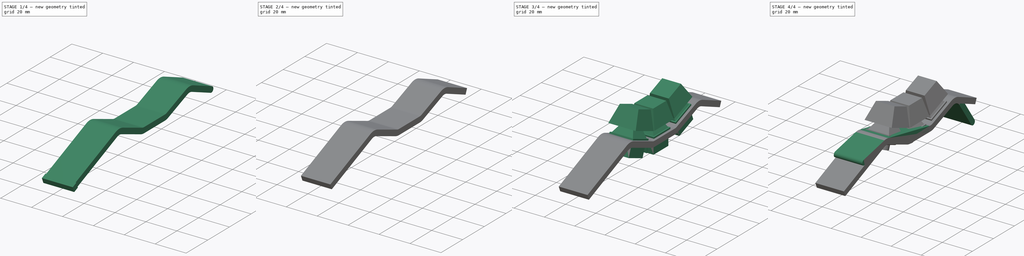
[diagram: build sequence overview — one tinted view per stage of 4, left to right]
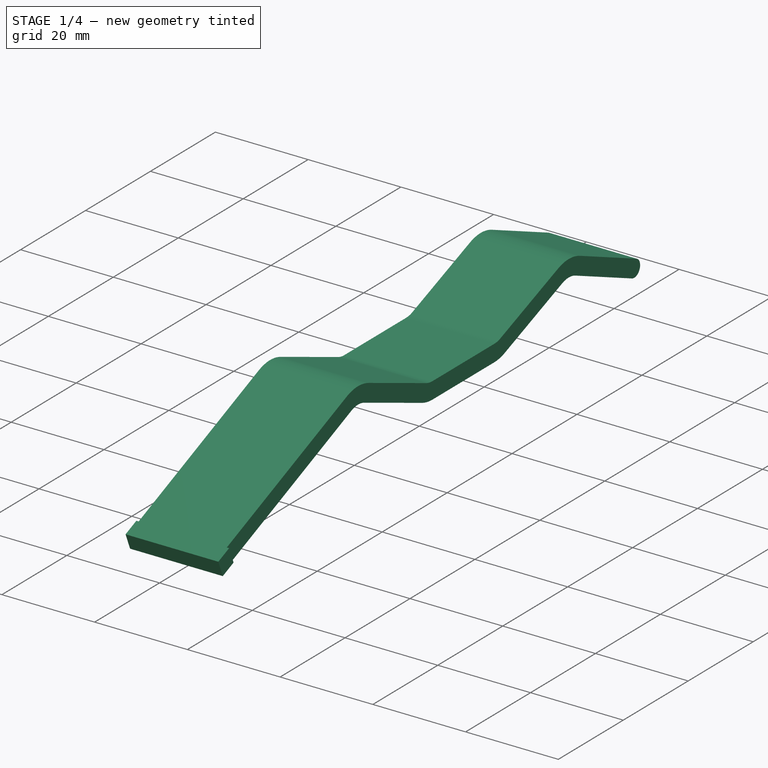
[diagram: stage 1 of 4 — iso view after this stage's code; geometry added in this stage tinted green]
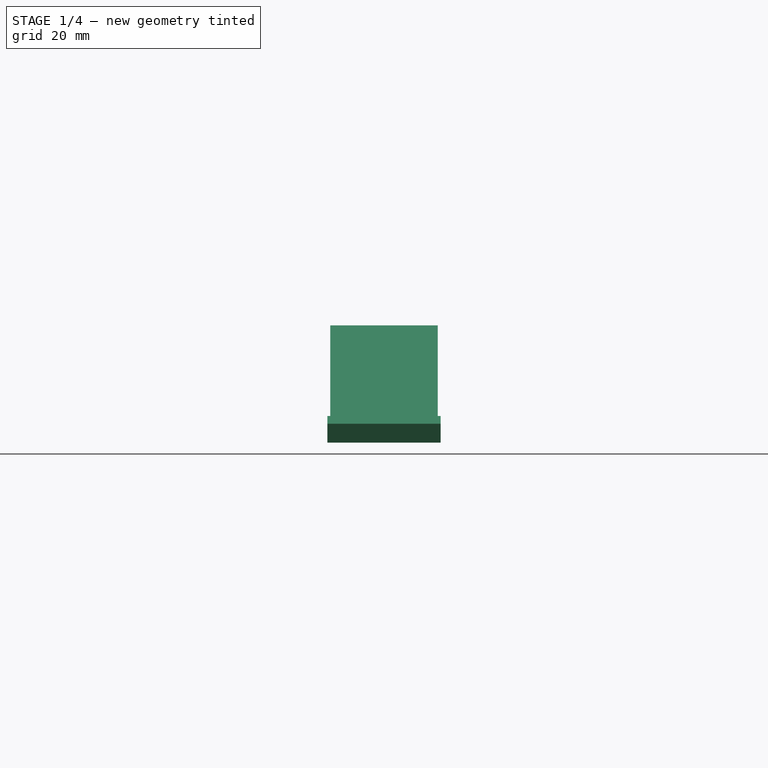
[diagram: stage 1 of 4 — front view after this stage's code; geometry added in this stage tinted green]
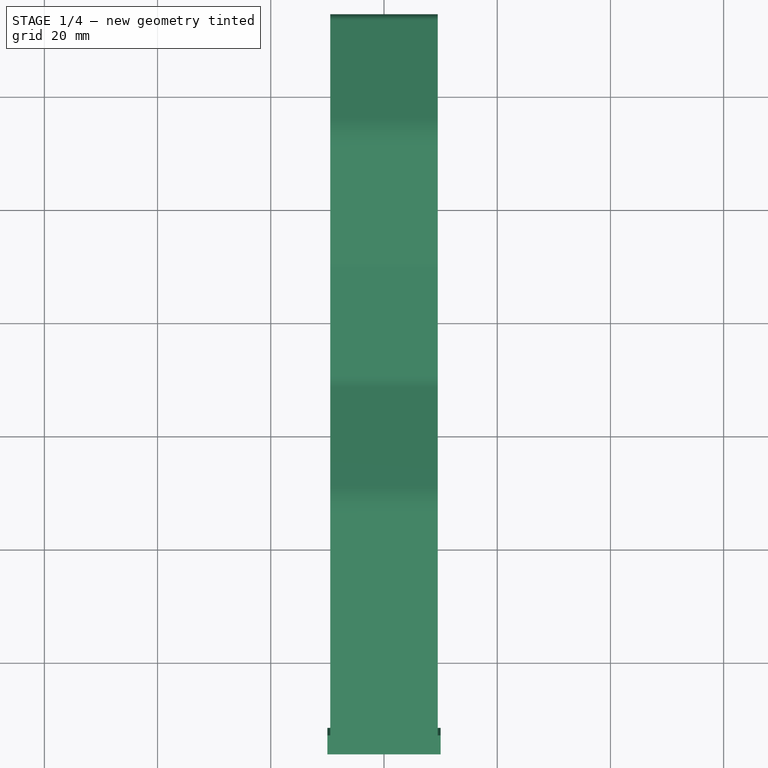
[diagram: stage 1 of 4 — top view after this stage's code; geometry added in this stage tinted green]
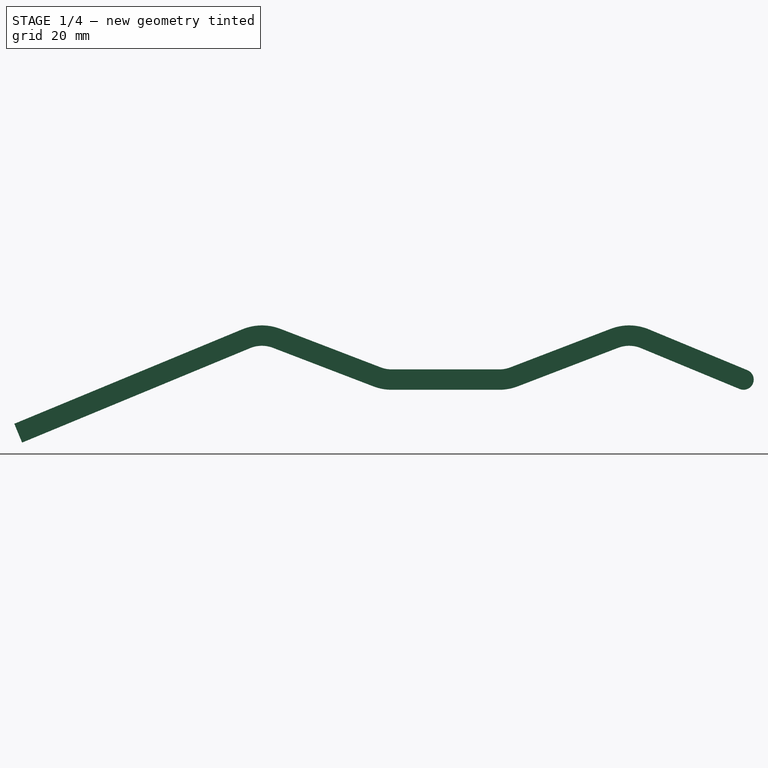
[diagram: stage 1 of 4 — right view after this stage's code; geometry added in this stage tinted green]
FCSTD DOCUMENT  (FreeCAD 0.21R33668 +26 (Git))
Label: KeyColumn2
License: All rights reserved
LicenseURL: http://en.wikipedia.org/wiki/All_rights_reserved
objects: App::Link×6, Sketcher::SketchObject×4, PartDesign::Body×4, Part::Compound×4, Part::Refine×3, PartDesign::SubShapeBinder×3, Part::Offset2D×2, Part::Extrusion×2, PartDesign::Pad×2, Part::Cut×2, App::DocumentObjectGroup×2, Spreadsheet::Sheet×1
note: 28 computed .brp shape members not serialized (recipe doc carries the construction recipe); baked Part::Feature solids carry a one-line shape summary decoded from their .brp
EXTERNAL_REF file=../components/MX_Switches.FCStd obj=Body008
EXTERNAL_REF file=../components/MX-Latch-Subtractor2.FCStd obj=Body001

FEATURE [Spreadsheet::Sheet] Spreadsheet  label="S"
  cells = B1=172.75; B2==180 - B1; B3=21; A4='Well Angle; B4(WellAngle)=159; C4='deg; D4=159; A5='Knucle Spacing; B5(KnuckleSpace)==7.25 mm; A6='End Slope; B6(EndSlope)=22.5; C6='deg; D6='Bottom palm; A7='End Slope B; B7(EndSlopeB)=22.5; C7='deg; D7='Top tips
FEATURE [Sketcher::SketchObject] Sketch
  FullyConstrained = true
  MapMode = 5
  Placement = pos=(0,0,0) rot=(0.57735,0.57735,0.57735;2.0944rad)
  Support = -> [YZ_Plane]
  expr: Constraints[14] = <<S>>.KnuckleSpace
  expr: Constraints[18] = <<S>>.WellAngle
  expr: Constraints[19] = <<S>>.WellAngle
  expr: Constraints[20] = <<S>>.EndSlopeB
  expr: Constraints[21] = <<S>>.EndSlope
  sketch-geometry (9):
    g0: LineSegment StartX=-29.8362 StartY=7.29053 StartZ=0 EndX=-12.0982 EndY=0.481542 EndZ=0
    g1: LineSegment StartX=-9.5 StartY=0 StartZ=0 EndX=9.5 EndY=0 EndZ=0
    g2: LineSegment StartX=12.0982 StartY=0.481542 StartZ=0 EndX=29.8362 EndY=7.29053 EndZ=0
    g3: ArcOfCircle CenterX=-32.4344 CenterY=0.522075 CenterZ=0 NormalX=0 NormalY=0 NormalZ=1 AngleXU=0 Radius=7.25 StartAngle=1.20428 EndAngle=1.9635
    g4: LineSegment StartX=-35.2088 StartY=7.2202 StartZ=0 EndX=-72.164 EndY=-8.08714 EndZ=0
    g5: ArcOfCircle CenterX=32.4344 CenterY=0.522075 CenterZ=0 NormalX=0 NormalY=0 NormalZ=1 AngleXU=0 Radius=7.25 StartAngle=1.1781 EndAngle=1.93732
    g6: LineSegment StartX=35.2088 StartY=7.2202 StartZ=0 EndX=52.6399 EndY=0 EndZ=0
    g7: ArcOfCircle CenterX=-9.5 CenterY=7.25 CenterZ=0 NormalX=0 NormalY=0 NormalZ=1 AngleXU=0 Radius=7.25 StartAngle=4.34587 EndAngle=4.71239
    g8: ArcOfCircle CenterX=9.5 CenterY=7.25 CenterZ=0 NormalX=0 NormalY=0 NormalZ=1 AngleXU=0 Radius=7.25 StartAngle=4.71239 EndAngle=5.07891
  constraints (23):
    c: Horizontal(g1)
    c: Symmetric(g1,g1,g-1)
    c: Equal(g1,g2)
    c: Equal(g1,g0)
    c: Tangent(g4,g3) = -1.5708
    c: Tangent(g6,g5) = 1.5708
    c: PointOnObject(g6,g-1)
    c: Tangent(g0,g3) = 1.5708
    c: Tangent(g5,g2) = 1.5708
    c: Tangent(g8,g2) = -1.5708
    c: Tangent(g8,g1) = -1.5708
    c: Tangent(g7,g1) = -1.5708
    c: Tangent(g7,g0) = -1.5708
    c: Distance(g1) = 19
    c: Radius(g3) = 7.25
    c: Equal(g3,g7)
    c: Equal(g7,g8)
    c: Equal(g8,g5)
    c: Angle(g1,g0) = 2.77507
    c: Angle(g2,g1) = 2.77507
    c: Angle(g6,g-1) = 0.392699
    c: Angle(g-1,g4) = 0.392699
    c: Distance(g4) = 40
FEATURE [PartDesign::Body] Body  label="SketchProfile"
  Group = -> [Sketch]
  Origin = -> Origin
FEATURE [Part::Offset2D] Offset2D
  Fill = false
  Intersection = false
  Join = 2
  Mode = 1
  SelfIntersection = false
  Source = -> Sketch
  Value = 1.8
FEATURE [Part::Extrusion] Extrude001  label="KeyColumnBase"
  Base = -> Offset2D
  Dir = (1,0,0)
  DirMode = 0
  FaceMakerClass = Part::FaceMakerBullseye
  LengthFwd = 19
  LengthRev = 0
  Solid = true
  Symmetric = true
FEATURE [Sketcher::SketchObject] Sketch001
  AttachmentOffset = pos=(0,0,-1.4) rot=(0,0,1;0rad)
  ExternalGeometry = -> [Pad]
  FullyConstrained = true
  MapMode = 5
  Placement = pos=(0,0,-1.4) rot=(0,0,1;0rad)
  Support = -> [XY_Plane]
  sketch-geometry (8):
    g0: LineSegment StartX=-3 StartY=7.5 StartZ=0 EndX=3 EndY=7.5 EndZ=0
    g1: LineSegment StartX=3 StartY=7.5 StartZ=0 EndX=3 EndY=7 EndZ=0
    g2: LineSegment StartX=3 StartY=7 StartZ=0 EndX=-3 EndY=7 EndZ=0
    g3: LineSegment StartX=-3 StartY=7 StartZ=0 EndX=-3 EndY=7.5 EndZ=0
    g4: LineSegment StartX=-3 StartY=-7 StartZ=0 EndX=3 EndY=-7 EndZ=0
    g5: LineSegment StartX=3 StartY=-7 StartZ=0 EndX=3 EndY=-7.5 EndZ=0
    g6: LineSegment StartX=3 StartY=-7.5 StartZ=0 EndX=-3 EndY=-7.5 EndZ=0
    g7: LineSegment StartX=-3 StartY=-7.5 StartZ=0 EndX=-3 EndY=-7 EndZ=0
  constraints (23):
    c: Coincident(g0,g1)
    c: Coincident(g1,g2)
    c: Coincident(g2,g3)
    c: Coincident(g3,g0)
    c: Horizontal(g0)
    c: Horizontal(g2)
    c: Vertical(g1)
    c: Vertical(g3)
    c: Coincident(g4,g5)
    c: Coincident(g5,g6)
    c: Coincident(g6,g7)
    c: Coincident(g7,g4)
    c: Horizontal(g4)
    c: Horizontal(g6)
    c: Vertical(g5)
    c: Vertical(g7)
    c: Equal(g3,g7)
    c: Equal(g6,g0)
    c: DistanceY(g1,g1) = 0.5
    c: DistanceX(g0,g0) = 6
    c: Horizontal(g2,g-3)
    c: Symmetric(g2,g4,g-1)
    c: Vertical(g1,g4)
FEATURE [PartDesign::Pad] Pad001
  BaseFeature = -> Pad
  Direction = (0,0,1)
  Length = 10
  Length2 = 10
  Profile = -> Sketch001
  ReferenceAxis = -> Sketch001 [N_Axis]
  Reversed = true
  Type = 1
FEATURE [PartDesign::Body] Body  label="MX-Latch-Subtractor2"
  Group = -> [Sketch,Pad,Sketch001,Pad001]
  Origin = -> Origin
  Tip = -> Pad001
FEATURE [Part::Refine] Body001  label="MX-Latch-Subtractor2N"
  Source = -> Body
FEATURE [App::DocumentObjectGroup] Group  label="Base Part"
  Group = -> [Body]
FEATURE [App::DocumentObjectGroup] Group001  label="Refined Copy"
  Group = -> [Body001]
---- part ../components/MX_Switches.FCStd = doc fcstd_fbf47cda5fe2 ----
FCSTD DOCUMENT  (FreeCAD 0.21R33668 +26 (Git))
Label: MX_Switches
License: All rights reserved
LicenseURL: http://en.wikipedia.org/wiki/All_rights_reserved
objects: Sketcher::SketchObject×45, PartDesign::Pad×15, PartDesign::AdditiveLoft×15, PartDesign::Plane×10, PartDesign::Body×5, Part::Refine×2
note: 122 computed .brp shape members not serialized (recipe doc carries the construction recipe); baked Part::Feature solids carry a one-line shape summary decoded from their .brp

FEATURE [Sketcher::SketchObject] Sketch014
  FullyConstrained = true
  MapMode = 5
  Support = -> [XY_Plane003]
  sketch-geometry (4):
    g0: LineSegment StartX=-7.8 StartY=7.8 StartZ=0 EndX=7.8 EndY=7.8 EndZ=0
    g1: LineSegment StartX=7.8 StartY=7.8 StartZ=0 EndX=7.8 EndY=-7.8 EndZ=0
    g2: LineSegment StartX=7.8 StartY=-7.8 StartZ=0 EndX=-7.8 EndY=-7.8 EndZ=0
    g3: LineSegment StartX=-7.8 StartY=-7.8 StartZ=0 EndX=-7.8 EndY=7.8 EndZ=0
  constraints (11):
    c: Coincident(g0,g1)
    c: Coincident(g1,g2)
    c: Coincident(g2,g3)
    c: Coincident(g3,g0)
    c: Horizontal(g0)
    c: Horizontal(g2)
    c: Vertical(g1)
    c: Vertical(g3)
    c: DistanceX(g0,g0) = 15.6
    c: Equal(g0,g3)
    c: Symmetric(g0,g1,g-1)
FEATURE [PartDesign::Pad] Pad003
  Direction = (0,0,1)
  Length = 1
  Length2 = 100
  Profile = -> Sketch014
  Refine = true
  Type = 0
FEATURE [Sketcher::SketchObject] Sketch015
  FullyConstrained = true
  MapMode = 5
  Support = -> [XY_Plane003]
  sketch-geometry (4):
    g0: LineSegment StartX=-7 StartY=7 StartZ=0 EndX=7 EndY=7 EndZ=0
    g1: LineSegment StartX=7 StartY=7 StartZ=0 EndX=7 EndY=-7 EndZ=0
    g2: LineSegment StartX=7 StartY=-7 StartZ=0 EndX=-7 EndY=-7 EndZ=0
    g3: LineSegment StartX=-7 StartY=-7 StartZ=0 EndX=-7 EndY=7 EndZ=0
  constraints (11):
    c: Coincident(g0,g1)
    c: Coincident(g1,g2)
    c: Coincident(g2,g3)
    c: Coincident(g3,g0)
    c: Horizontal(g0)
    c: Horizontal(g2)
    c: Vertical(g1)
    c: Vertical(g3)
    c: Symmetric(g0,g1,g-1)
    c: Equal(g0,g3)
    c: DistanceX(g0,g0) = 14
FEATURE [PartDesign::Pad] Pad004
  BaseFeature = -> Pad003
  Direction = (0,0,1)
  Length = 2.5
  Length2 = 100
  Profile = -> Sketch015
  Refine = true
  Reversed = true
  Type = 0
FEATURE [PartDesign::Plane] DatumPlane001
  Length = 60
  MapMode = 5
  Placement = pos=(0,0,-2.5) rot=(1,0,0;3.14159rad)
  ResizeMode = 0
  Support = -> [Pad004]
  Width = 60
FEATURE [Sketcher::SketchObject] Sketch016
  AttachmentOffset = pos=(0,0,2.5) rot=(0,0,1;0rad)
  FullyConstrained = true
  MapMode = 5
  Placement = pos=(0,0,-5) rot=(1,0,0;3.14159rad)
  Support = -> [DatumPlane001]
  sketch-geometry (4):
    g0: LineSegment StartX=-5 StartY=5 StartZ=0 EndX=5 EndY=5 EndZ=0
    g1: LineSegment StartX=5 StartY=5 StartZ=0 EndX=5 EndY=-5 EndZ=0
    g2: LineSegment StartX=5 StartY=-5 StartZ=0 EndX=-5 EndY=-5 EndZ=0
    g3: LineSegment StartX=-5 StartY=-5 StartZ=0 EndX=-5 EndY=5 EndZ=0
  constraints (11):
    c: Coincident(g0,g1)
    c: Coincident(g1,g2)
    c: Coincident(g2,g3)
    c: Coincident(g3,g0)
    c: Horizontal(g0)
    c: Horizontal(g2)
    c: Vertical(g1)
    c: Vertical(g3)
    c: DistanceX(g0,g0) = 10
    c: Equal(g0,g3)
    c: Symmetric(g0,g1,g-1)
FEATURE [Sketcher::SketchObject] Sketch006
  FullyConstrained = true
  MapMode = 5
  Placement = pos=(0,0,-2.5) rot=(1,0,0;3.14159rad)
  Support = -> [DatumPlane001]
  sketch-geometry (4):
    g0: LineSegment StartX=-7 StartY=7 StartZ=0 EndX=7 EndY=7 EndZ=0
    g1: LineSegment StartX=7 StartY=7 StartZ=0 EndX=7 EndY=-7 EndZ=0
    g2: LineSegment StartX=7 StartY=-7 StartZ=0 EndX=-7 EndY=-7 EndZ=0
    g3: LineSegment StartX=-7 StartY=-7 StartZ=0 EndX=-7 EndY=7 EndZ=0
  constraints (11):
    c: Coincident(g0,g1)
    c: Coincident(g1,g2)
    c: Coincident(g2,g3)
    c: Coincident(g3,g0)
    c: Horizontal(g0)
    c: Horizontal(g2)
    c: Vertical(g1)
    c: Vertical(g3)
    c: Equal(g0,g3)
    c: DistanceX(g0,g0) = 14
    c: Symmetric(g0,g1,g-1)
FEATURE [PartDesign::AdditiveLoft] AdditiveLoft
  BaseFeature = -> Pad004
  Closed = false
  Profile = -> Sketch016
  Refine = true
  Ruled = false
  Sections = -> [Sketch006]
FEATURE [PartDesign::Plane] DatumPlane002
  Length = 60
  MapMode = 5
  Placement = pos=(0,0,-5) rot=(1,0,0;3.14159rad)
  ResizeMode = 0
  Support = -> [AdditiveLoft]
  Width = 60
FEATURE [Sketcher::SketchObject] Sketch007
  FullyConstrained = true
  MapMode = 5
  Placement = pos=(0,0,-5) rot=(1,0,0;3.14159rad)
  Support = -> [DatumPlane002]
  sketch-geometry (1):
    g0: Circle CenterX=0 CenterY=0 CenterZ=0 NormalX=0 NormalY=0 NormalZ=1 AngleXU=0 Radius=4
  constraints (2):
    c: Coincident(g0,g-1)
    c: Radius(g0) = 4
FEATURE [PartDesign::Pad] Pad005
  BaseFeature = -> AdditiveLoft
  Direction = (0,0,-1)
  Length = 3.3
  Length2 = 100
  Profile = -> Sketch007
  Refine = true
  Type = 0
FEATURE [Sketcher::SketchObject] Sketch017
  FullyConstrained = true
  MapMode = 5
  Placement = pos=(0,0,1) rot=(0,0,1;0rad)
  sketch-geometry (4):
    g0: LineSegment StartX=-7 StartY=7 StartZ=0 EndX=7 EndY=7 EndZ=0
    g1: LineSegment StartX=7 StartY=7 StartZ=0 EndX=7 EndY=-7 EndZ=0
    g2: LineSegment StartX=7 StartY=-7 StartZ=0 EndX=-7 EndY=-7 EndZ=0
    g3: LineSegment StartX=-7 StartY=-7 StartZ=0 EndX=-7 EndY=7 EndZ=0
  constraints (11):
    c: Coincident(g0,g1)
    c: Coincident(g1,g2)
    c: Coincident(g2,g3)
    c: Coincident(g3,g0)
    c: Horizontal(g0)
    c: Horizontal(g2)
    c: Vertical(g1)
    c: Vertical(g3)
    c: Symmetric(g0,g1,g-1)
    c: Equal(g0,g3)
    c: DistanceX(g0,g0) = 14
FEATURE [Sketcher::SketchObject] Sketch018
  AttachmentOffset = pos=(0,0,5.6) rot=(0,0,1;0rad)
  FullyConstrained = true
  MapMode = 5
  Placement = pos=(0,0,6.6) rot=(0,0,1;0rad)
  expr: .AttachmentOffset.Base.z = 11.6 - 5 - 1
  sketch-geometry (4):
    g0: LineSegment StartX=-4 StartY=4 StartZ=0 EndX=4 EndY=4 EndZ=0
    g1: LineSegment StartX=4 StartY=4 StartZ=0 EndX=4 EndY=-4 EndZ=0
    g2: LineSegment StartX=4 StartY=-4 StartZ=0 EndX=-4 EndY=-4 EndZ=0
    g3: LineSegment StartX=-4 StartY=-4 StartZ=0 EndX=-4 EndY=4 EndZ=0
  constraints (11):
    c: Coincident(g0,g1)
    c: Coincident(g1,g2)
    c: Coincident(g2,g3)
    c: Coincident(g3,g0)
    c: Horizontal(g0)
    c: Horizontal(g2)
    c: Vertical(g1)
    c: Vertical(g3)
    c: Equal(g0,g3)
    c: Symmetric(g0,g1,g-1)
    c: DistanceX(g0,g0) = 8
FEATURE [PartDesign::AdditiveLoft] AdditiveLoft001
  BaseFeature = -> Pad005
  Closed = false
  Profile = -> Sketch017
  Refine = true
  Ruled = false
  Sections = -> [Sketch018]
FEATURE [Sketcher::SketchObject] Sketch019
  AttachmentOffset = pos=(0,0,16) rot=(0,0,1;0rad)
  FullyConstrained = true
  MapMode = 5
  Placement = pos=(0,0,17) rot=(0,0,1;0rad)
  sketch-geometry (4):
    g0: LineSegment StartX=-6.185 StartY=6.185 StartZ=0 EndX=6.185 EndY=6.185 EndZ=0
    g1: LineSegment StartX=6.185 StartY=6.185 StartZ=0 EndX=6.185 EndY=-6.185 EndZ=0
    g2: LineSegment StartX=6.185 StartY=-6.185 StartZ=0 EndX=-6.185 EndY=-6.185 EndZ=0
    g3: LineSegment StartX=-6.185 StartY=-6.185 StartZ=0 EndX=-6.185 EndY=6.185 EndZ=0
  constraints (11):
    c: Coincident(g0,g1)
    c: Coincident(g1,g2)
    c: Coincident(g2,g3)
    c: Coincident(g3,g0)
    c: Horizontal(g0)
    c: Horizontal(g2)
    c: Vertical(g1)
    c: Vertical(g3)
    c: DistanceX(g0,g0) = 12.37
    c: Equal(g0,g3)
    c: Symmetric(g0,g1,g-1)
FEATURE [Sketcher::SketchObject] Sketch020
  AttachmentOffset = pos=(0,0,4.61) rot=(0,0,1;0rad)
  FullyConstrained = true
  MapMode = 5
  Placement = pos=(0,0,5.61) rot=(0,0,1;0rad)
  expr: .AttachmentOffset.Base.z = 16 - 9.39 - 2
  sketch-geometry (4):
    g0: LineSegment StartX=-9.05 StartY=9.05 StartZ=0 EndX=9.05 EndY=9.05 EndZ=0
    g1: LineSegment StartX=9.05 StartY=9.05 StartZ=0 EndX=9.05 EndY=-9.05 EndZ=0
    g2: LineSegment StartX=9.05 StartY=-9.05 StartZ=0 EndX=-9.05 EndY=-9.05 EndZ=0
    g3: LineSegment StartX=-9.05 StartY=-9.05 StartZ=0 EndX=-9.05 EndY=9.05 EndZ=0
  constraints (11):
    c: Coincident(g0,g1)
    c: Coincident(g1,g2)
    c: Coincident(g2,g3)
    c: Coincident(g3,g0)
    c: Horizontal(g0)
    c: Horizontal(g2)
    c: Vertical(g1)
    c: Vertical(g3)
    c: DistanceX(g0,g0) = 18.1
    c: Equal(g0,g3)
    c: Symmetric(g0,g1,g-1)
FEATURE [PartDesign::AdditiveLoft] AdditiveLoft002
  BaseFeature = -> AdditiveLoft001
  Closed = false
  Profile = -> Sketch019
  Refine = true
  Ruled = false
  Sections = -> [Sketch020]
FEATURE [PartDesign::Body] Body003  label="MXSwitch100"
  Group = -> [Sketch014,Pad003,Sketch015,Pad004,DatumPlane001,Sketch016,Sketch006,AdditiveLoft,DatumPlane002,Sketch007,Pad005,Sketch017,Sketch018,AdditiveLoft001,Sketch019,Sketch020,AdditiveLoft002]
  Origin = -> Origin003
  Tip = -> AdditiveLoft002
FEATURE [Sketcher::SketchObject] Sketch023
  FullyConstrained = true
  MapMode = 5
  Support = -> [XY_Plane004]
  sketch-geometry (4):
    g0: LineSegment StartX=-7.8 StartY=7.8 StartZ=0 EndX=7.8 EndY=7.8 EndZ=0
    g1: LineSegment StartX=7.8 StartY=7.8 StartZ=0 EndX=7.8 EndY=-7.8 EndZ=0
    g2: LineSegment StartX=7.8 StartY=-7.8 StartZ=0 EndX=-7.8 EndY=-7.8 EndZ=0
    g3: LineSegment StartX=-7.8 StartY=-7.8 StartZ=0 EndX=-7.8 EndY=7.8 EndZ=0
  constraints (11):
    c: Coincident(g0,g1)
    c: Coincident(g1,g2)
    c: Coincident(g2,g3)
    c: Coincident(g3,g0)
    c: Horizontal(g0)
    c: Horizontal(g2)
    c: Vertical(g1)
    c: Vertical(g3)
    c: DistanceX(g0,g0) = 15.6
    c: Equal(g0,g3)
    c: Symmetric(g0,g1,g-1)
FEATURE [PartDesign::Pad] Pad006
  Direction = (0,0,1)
  Length = 1
  Length2 = 100
  Profile = -> Sketch023
  Refine = true
  Type = 0
FEATURE [Sketcher::SketchObject] Sketch024
  FullyConstrained = true
  MapMode = 5
  Support = -> [XY_Plane004]
  sketch-geometry (4):
    g0: LineSegment StartX=-7 StartY=7 StartZ=0 EndX=7 EndY=7 EndZ=0
    g1: LineSegment StartX=7 StartY=7 StartZ=0 EndX=7 EndY=-7 EndZ=0
    g2: LineSegment StartX=7 StartY=-7 StartZ=0 EndX=-7 EndY=-7 EndZ=0
    g3: LineSegment StartX=-7 StartY=-7 StartZ=0 EndX=-7 EndY=7 EndZ=0
  constraints (11):
    c: Coincident(g0,g1)
    c: Coincident(g1,g2)
    c: Coincident(g2,g3)
    c: Coincident(g3,g0)
    c: Horizontal(g0)
    c: Horizontal(g2)
    c: Vertical(g1)
    c: Vertical(g3)
    c: Symmetric(g0,g1,g-1)
    c: Equal(g0,g3)
    c: DistanceX(g0,g0) = 14
FEATURE [PartDesign::Pad] Pad007
  BaseFeature = -> Pad006
  Direction = (0,0,1)
  Length = 2.5
  Length2 = 100
  Profile = -> Sketch024
  Refine = true
  Reversed = true
  Type = 0
FEATURE [PartDesign::Plane] DatumPlane004
  Length = 60
  MapMode = 5
  Placement = pos=(0,0,-2.5) rot=(1,0,0;3.14159rad)
  ResizeMode = 0
  Support = -> [Pad007]
  Width = 60
FEATURE [Sketcher::SketchObject] Sketch021
  FullyConstrained = true
  MapMode = 5
  Placement = pos=(0,0,-2.5) rot=(1,0,0;3.14159rad)
  Support = -> [DatumPlane004]
  sketch-geometry (4):
    g0: LineSegment StartX=-7 StartY=7 StartZ=0 EndX=7 EndY=7 EndZ=0
    g1: LineSegment StartX=7 StartY=7 StartZ=0 EndX=7 EndY=-7 EndZ=0
    g2: LineSegment StartX=7 StartY=-7 StartZ=0 EndX=-7 EndY=-7 EndZ=0
    g3: LineSegment StartX=-7 StartY=-7 StartZ=0 EndX=-7 EndY=7 EndZ=0
  constraints (11):
    c: Coincident(g0,g1)
    c: Coincident(g1,g2)
    c: Coincident(g2,g3)
    c: Coincident(g3,g0)
    c: Horizontal(g0)
    c: Horizontal(g2)
    c: Vertical(g1)
    c: Vertical(g3)
    c: Equal(g0,g3)
    c: DistanceX(g0,g0) = 14
    c: Symmetric(g0,g1,g-1)
FEATURE [Sketcher::SketchObject] Sketch025
  AttachmentOffset = pos=(0,0,2.5) rot=(0,0,1;0rad)
  FullyConstrained = true
  MapMode = 5
  Placement = pos=(0,0,-5) rot=(1,0,0;3.14159rad)
  Support = -> [DatumPlane004]
  sketch-geometry (4):
    g0: LineSegment StartX=-5 StartY=5 StartZ=0 EndX=5 EndY=5 EndZ=0
    g1: LineSegment StartX=5 StartY=5 StartZ=0 EndX=5 EndY=-5 EndZ=0
    g2: LineSegment StartX=5 StartY=-5 StartZ=0 EndX=-5 EndY=-5 EndZ=0
    g3: LineSegment StartX=-5 StartY=-5 StartZ=0 EndX=-5 EndY=5 EndZ=0
  constraints (11):
    c: Coincident(g0,g1)
    c: Coincident(g1,g2)
    c: Coincident(g2,g3)
    c: Coincident(g3,g0)
    c: Horizontal(g0)
    c: Horizontal(g2)
    c: Vertical(g1)
    c: Vertical(g3)
    c: DistanceX(g0,g0) = 10
    c: Equal(g0,g3)
    c: Symmetric(g0,g1,g-1)
FEATURE [PartDesign::AdditiveLoft] AdditiveLoft003
  BaseFeature = -> Pad007
  Closed = false
  Profile = -> Sketch025
  Refine = true
  Ruled = false
  Sections = -> [Sketch021]
FEATURE [PartDesign::Plane] DatumPlane005
  Length = 60
  MapMode = 5
  Placement = pos=(0,0,-5) rot=(1,0,0;3.14159rad)
  ResizeMode = 0
  Support = -> [AdditiveLoft003]
  Width = 60
FEATURE [Sketcher::SketchObject] Sketch022
  FullyConstrained = true
  MapMode = 5
  Placement = pos=(0,0,-5) rot=(1,0,0;3.14159rad)
  Support = -> [DatumPlane005]
  sketch-geometry (1):
    g0: Circle CenterX=0 CenterY=0 CenterZ=0 NormalX=0 NormalY=0 NormalZ=1 AngleXU=0 Radius=4
  constraints (2):
    c: Coincident(g0,g-1)
    c: Radius(g0) = 4
FEATURE [PartDesign::Pad] Pad008
  BaseFeature = -> AdditiveLoft003
  Direction = (0,0,-1)
  Length = 3.3
  Length2 = 100
  Profile = -> Sketch022
  Refine = true
  Type = 0
FEATURE [Sketcher::SketchObject] Sketch026
  FullyConstrained = true
  MapMode = 5
  Placement = pos=(0,0,1) rot=(0,0,1;0rad)
  sketch-geometry (4):
    g0: LineSegment StartX=-7 StartY=7 StartZ=0 EndX=7 EndY=7 EndZ=0
    g1: LineSegment StartX=7 StartY=7 StartZ=0 EndX=7 EndY=-7 EndZ=0
    g2: LineSegment StartX=7 StartY=-7 StartZ=0 EndX=-7 EndY=-7 EndZ=0
    g3: LineSegment StartX=-7 StartY=-7 StartZ=0 EndX=-7 EndY=7 EndZ=0
  constraints (11):
    c: Coincident(g0,g1)
    c: Coincident(g1,g2)
    c: Coincident(g2,g3)
    c: Coincident(g3,g0)
    c: Horizontal(g0)
    c: Horizontal(g2)
    c: Vertical(g1)
    c: Vertical(g3)
    c: Symmetric(g0,g1,g-1)
    c: Equal(g0,g3)
    c: DistanceX(g0,g0) = 14
FEATURE [Sketcher::SketchObject] Sketch027
  AttachmentOffset = pos=(0,0,5.6) rot=(0,0,1;0rad)
  FullyConstrained = true
  MapMode = 5
  Placement = pos=(0,0,6.6) rot=(0,0,1;0rad)
  expr: .AttachmentOffset.Base.z = 11.6 - 5 - 1
  sketch-geometry (4):
    g0: LineSegment StartX=-4 StartY=4 StartZ=0 EndX=4 EndY=4 EndZ=0
    g1: LineSegment StartX=4 StartY=4 StartZ=0 EndX=4 EndY=-4 EndZ=0
    g2: LineSegment StartX=4 StartY=-4 StartZ=0 EndX=-4 EndY=-4 EndZ=0
    g3: LineSegment StartX=-4 StartY=-4 StartZ=0 EndX=-4 EndY=4 EndZ=0
  constraints (11):
    c: Coincident(g0,g1)
    c: Coincident(g1,g2)
    c: Coincident(g2,g3)
    c: Coincident(g3,g0)
    c: Horizontal(g0)
    c: Horizontal(g2)
    c: Vertical(g1)
    c: Vertical(g3)
    c: Equal(g0,g3)
    c: Symmetric(g0,g1,g-1)
    c: DistanceX(g0,g0) = 8
FEATURE [PartDesign::AdditiveLoft] AdditiveLoft004
  BaseFeature = -> Pad008
  Closed = false
  Profile = -> Sketch026
  Refine = true
  Ruled = false
  Sections = -> [Sketch027]
FEATURE [Sketcher::SketchObject] Sketch028
  AttachmentOffset = pos=(0,0,16) rot=(0,0,1;0rad)
  FullyConstrained = true
  MapMode = 5
  Placement = pos=(0,0,17) rot=(0,0,1;0rad)
  expr: Constraints[8] = 12.37 mm * 1.25
  sketch-geometry (4):
    g0: LineSegment StartX=-7.73125 StartY=6.185 StartZ=0 EndX=7.73125 EndY=6.185 EndZ=0
    g1: LineSegment StartX=7.73125 StartY=6.185 StartZ=0 EndX=7.73125 EndY=-6.185 EndZ=0
    g2: LineSegment StartX=7.73125 StartY=-6.185 StartZ=0 EndX=-7.73125 EndY=-6.185 EndZ=0
    g3: LineSegment StartX=-7.73125 StartY=-6.185 StartZ=0 EndX=-7.73125 EndY=6.185 EndZ=0
  constraints (11):
    c: Coincident(g0,g1)
    c: Coincident(g1,g2)
    c: Coincident(g2,g3)
    c: Coincident(g3,g0)
    c: Horizontal(g0)
    c: Horizontal(g2)
    c: Vertical(g1)
    c: Vertical(g3)
    c: DistanceX(g0,g0) = 15.4625
    c: Symmetric(g0,g1,g-1)
    c: DistanceY(g1,g1) = 12.37
FEATURE [Sketcher::SketchObject] Sketch029
  AttachmentOffset = pos=(0,0,4.61) rot=(0,0,1;0rad)
  FullyConstrained = true
  MapMode = 5
  Placement = pos=(0,0,5.61) rot=(0,0,1;0rad)
  expr: .AttachmentOffset.Base.z = 16 - 9.39 - 2
  expr: Constraints[8] = 18.1 mm * 1.25
  sketch-geometry (4):
    g0: LineSegment StartX=-11.3125 StartY=9.05 StartZ=0 EndX=11.3125 EndY=9.05 EndZ=0
    g1: LineSegment StartX=11.3125 StartY=9.05 StartZ=0 EndX=11.3125 EndY=-9.05 EndZ=0
    g2: LineSegment StartX=11.3125 StartY=-9.05 StartZ=0 EndX=-11.3125 EndY=-9.05 EndZ=0
    g3: LineSegment StartX=-11.3125 StartY=-9.05 StartZ=0 EndX=-11.3125 EndY=9.05 EndZ=0
  constraints (11):
    c: Coincident(g0,g1)
    c: Coincident(g1,g2)
    c: Coincident(g2,g3)
    c: Coincident(g3,g0)
    c: Horizontal(g0)
    c: Horizontal(g2)
    c: Vertical(g1)
    c: Vertical(g3)
    c: DistanceX(g0,g0) = 22.625
    c: Symmetric(g0,g1,g-1)
    c: DistanceY(g1,g1) = 18.1
FEATURE [PartDesign::AdditiveLoft] AdditiveLoft005
  BaseFeature = -> AdditiveLoft004
  Closed = false
  Profile = -> Sketch028
  Refine = true
  Ruled = false
  Sections = -> [Sketch029]
FEATURE [PartDesign::Body] Body004  label="MXSwitch125"
  Group = -> [Sketch023,Pad006,Sketch024,Pad007,DatumPlane004,Sketch025,Sketch021,AdditiveLoft003,DatumPlane005,Sketch022,Pad008,Sketch026,Sketch027,AdditiveLoft004,Sketch028,Sketch029,AdditiveLoft005]
  Origin = -> Origin004
  Tip = -> AdditiveLoft005
FEATURE [Sketcher::SketchObject] Sketch032
  FullyConstrained = true
  MapMode = 5
  Support = -> [XY_Plane005]
  sketch-geometry (4):
    g0: LineSegment StartX=-7.8 StartY=7.8 StartZ=0 EndX=7.8 EndY=7.8 EndZ=0
    g1: LineSegment StartX=7.8 StartY=7.8 StartZ=0 EndX=7.8 EndY=-7.8 EndZ=0
    g2: LineSegment StartX=7.8 StartY=-7.8 StartZ=0 EndX=-7.8 EndY=-7.8 EndZ=0
    g3: LineSegment StartX=-7.8 StartY=-7.8 StartZ=0 EndX=-7.8 EndY=7.8 EndZ=0
  constraints (11):
    c: Coincident(g0,g1)
    c: Coincident(g1,g2)
    c: Coincident(g2,g3)
    c: Coincident(g3,g0)
    c: Horizontal(g0)
    c: Horizontal(g2)
    c: Vertical(g1)
    c: Vertical(g3)
    c: DistanceX(g0,g0) = 15.6
    c: Equal(g0,g3)
    c: Symmetric(g0,g1,g-1)
FEATURE [PartDesign::Pad] Pad009
  Direction = (0,0,1)
  Length = 1
  Length2 = 100
  Profile = -> Sketch032
  Refine = true
  Type = 0
FEATURE [Sketcher::SketchObject] Sketch033
  FullyConstrained = true
  MapMode = 5
  Support = -> [XY_Plane005]
  sketch-geometry (4):
    g0: LineSegment StartX=-7 StartY=7 StartZ=0 EndX=7 EndY=7 EndZ=0
    g1: LineSegment StartX=7 StartY=7 StartZ=0 EndX=7 EndY=-7 EndZ=0
    g2: LineSegment StartX=7 StartY=-7 StartZ=0 EndX=-7 EndY=-7 EndZ=0
    g3: LineSegment StartX=-7 StartY=-7 StartZ=0 EndX=-7 EndY=7 EndZ=0
  constraints (11):
    c: Coincident(g0,g1)
    c: Coincident(g1,g2)
    c: Coincident(g2,g3)
    c: Coincident(g3,g0)
    c: Horizontal(g0)
    c: Horizontal(g2)
    c: Vertical(g1)
    c: Vertical(g3)
    c: Symmetric(g0,g1,g-1)
    c: Equal(g0,g3)
    c: DistanceX(g0,g0) = 14
FEATURE [PartDesign::Pad] Pad010
  BaseFeature = -> Pad009
  Direction = (0,0,1)
  Length = 2.5
  Length2 = 100
  Profile = -> Sketch033
  Refine = true
  Reversed = true
  Type = 0
FEATURE [PartDesign::Plane] DatumPlane007
  Length = 60
  MapMode = 5
  Placement = pos=(0,0,-2.5) rot=(1,0,0;3.14159rad)
  ResizeMode = 0
  Support = -> [Pad010]
  Width = 60
FEATURE [Sketcher::SketchObject] Sketch030
  FullyConstrained = true
  MapMode = 5
  Placement = pos=(0,0,-2.5) rot=(1,0,0;3.14159rad)
  Support = -> [DatumPlane007]
  sketch-geometry (4):
    g0: LineSegment StartX=-7 StartY=7 StartZ=0 EndX=7 EndY=7 EndZ=0
    g1: LineSegment StartX=7 StartY=7 StartZ=0 EndX=7 EndY=-7 EndZ=0
    g2: LineSegment StartX=7 StartY=-7 StartZ=0 EndX=-7 EndY=-7 EndZ=0
    g3: LineSegment StartX=-7 StartY=-7 StartZ=0 EndX=-7 EndY=7 EndZ=0
  constraints (11):
    c: Coincident(g0,g1)
    c: Coincident(g1,g2)
    c: Coincident(g2,g3)
    c: Coincident(g3,g0)
    c: Horizontal(g0)
    c: Horizontal(g2)
    c: Vertical(g1)
    c: Vertical(g3)
    c: Equal(g0,g3)
    c: DistanceX(g0,g0) = 14
    c: Symmetric(g0,g1,g-1)
FEATURE [Sketcher::SketchObject] Sketch034
  AttachmentOffset = pos=(0,0,2.5) rot=(0,0,1;0rad)
  FullyConstrained = true
  MapMode = 5
  Placement = pos=(0,0,-5) rot=(1,0,0;3.14159rad)
  Support = -> [DatumPlane007]
  sketch-geometry (4):
    g0: LineSegment StartX=-5 StartY=5 StartZ=0 EndX=5 EndY=5 EndZ=0
    g1: LineSegment StartX=5 StartY=5 StartZ=0 EndX=5 EndY=-5 EndZ=0
    g2: LineSegment StartX=5 StartY=-5 StartZ=0 EndX=-5 EndY=-5 EndZ=0
    g3: LineSegment StartX=-5 StartY=-5 StartZ=0 EndX=-5 EndY=5 EndZ=0
  constraints (11):
    c: Coincident(g0,g1)
    c: Coincident(g1,g2)
    c: Coincident(g2,g3)
    c: Coincident(g3,g0)
    c: Horizontal(g0)
    c: Horizontal(g2)
    c: Vertical(g1)
    c: Vertical(g3)
    c: DistanceX(g0,g0) = 10
    c: Equal(g0,g3)
    c: Symmetric(g0,g1,g-1)
FEATURE [PartDesign::AdditiveLoft] AdditiveLoft006
  BaseFeature = -> Pad010
  Closed = false
  Profile = -> Sketch034
  Refine = true
  Ruled = false
  Sections = -> [Sketch030]
FEATURE [PartDesign::Plane] DatumPlane008
  Length = 60
  MapMode = 5
  Placement = pos=(0,0,-5) rot=(1,0,0;3.14159rad)
  ResizeMode = 0
  Support = -> [AdditiveLoft006]
  Width = 60
FEATURE [Sketcher::SketchObject] Sketch031
  FullyConstrained = true
  MapMode = 5
  Placement = pos=(0,0,-5) rot=(1,0,0;3.14159rad)
  Support = -> [DatumPlane008]
  sketch-geometry (1):
    g0: Circle CenterX=0 CenterY=0 CenterZ=0 NormalX=0 NormalY=0 NormalZ=1 AngleXU=0 Radius=4
  constraints (2):
    c: Coincident(g0,g-1)
    c: Radius(g0) = 4
FEATURE [PartDesign::Pad] Pad011
  BaseFeature = -> AdditiveLoft006
  Direction = (0,0,-1)
  Length = 3.3
  Length2 = 100
  Profile = -> Sketch031
  Refine = true
  Type = 0
FEATURE [Sketcher::SketchObject] Sketch035
  FullyConstrained = true
  MapMode = 5
  Placement = pos=(0,0,1) rot=(0,0,1;0rad)
  sketch-geometry (4):
    g0: LineSegment StartX=-7 StartY=7 StartZ=0 EndX=7 EndY=7 EndZ=0
    g1: LineSegment StartX=7 StartY=7 StartZ=0 EndX=7 EndY=-7 EndZ=0
    g2: LineSegment StartX=7 StartY=-7 StartZ=0 EndX=-7 EndY=-7 EndZ=0
    g3: LineSegment StartX=-7 StartY=-7 StartZ=0 EndX=-7 EndY=7 EndZ=0
  constraints (11):
    c: Coincident(g0,g1)
    c: Coincident(g1,g2)
    c: Coincident(g2,g3)
    c: Coincident(g3,g0)
    c: Horizontal(g0)
    c: Horizontal(g2)
    c: Vertical(g1)
    c: Vertical(g3)
    c: Symmetric(g0,g1,g-1)
    c: Equal(g0,g3)
    c: DistanceX(g0,g0) = 14
FEATURE [Sketcher::SketchObject] Sketch036
  AttachmentOffset = pos=(0,0,5.6) rot=(0,0,1;0rad)
  FullyConstrained = true
  MapMode = 5
  Placement = pos=(0,0,6.6) rot=(0,0,1;0rad)
  expr: .AttachmentOffset.Base.z = 11.6 - 5 - 1
  sketch-geometry (4):
    g0: LineSegment StartX=-4 StartY=4 StartZ=0 EndX=4 EndY=4 EndZ=0
    g1: LineSegment StartX=4 StartY=4 StartZ=0 EndX=4 EndY=-4 EndZ=0
    g2: LineSegment StartX=4 StartY=-4 StartZ=0 EndX=-4 EndY=-4 EndZ=0
    g3: LineSegment StartX=-4 StartY=-4 StartZ=0 EndX=-4 EndY=4 EndZ=0
  constraints (11):
    c: Coincident(g0,g1)
    c: Coincident(g1,g2)
    c: Coincident(g2,g3)
    c: Coincident(g3,g0)
    c: Horizontal(g0)
    c: Horizontal(g2)
    c: Vertical(g1)
    c: Vertical(g3)
    c: Equal(g0,g3)
    c: Symmetric(g0,g1,g-1)
    c: DistanceX(g0,g0) = 8
FEATURE [PartDesign::AdditiveLoft] AdditiveLoft007
  BaseFeature = -> Pad011
  Closed = false
  Profile = -> Sketch035
  Refine = true
  Ruled = false
  Sections = -> [Sketch036]
FEATURE [Sketcher::SketchObject] Sketch037
  AttachmentOffset = pos=(0,0,16) rot=(0,0,1;0rad)
  FullyConstrained = true
  MapMode = 5
  Placement = pos=(0,0,17) rot=(0,0,1;0rad)
  expr: Constraints[8] = 36.2 mm - 5.73 mm
  sketch-geometry (4):
    g0: LineSegment StartX=-15.235 StartY=6.185 StartZ=0 EndX=15.235 EndY=6.185 EndZ=0
    g1: LineSegment StartX=15.235 StartY=6.185 StartZ=0 EndX=15.235 EndY=-6.185 EndZ=0
    g2: LineSegment StartX=15.235 StartY=-6.185 StartZ=0 EndX=-15.235 EndY=-6.185 EndZ=0
    g3: LineSegment StartX=-15.235 StartY=-6.185 StartZ=0 EndX=-15.235 EndY=6.185 EndZ=0
  constraints (11):
    c: Coincident(g0,g1)
    c: Coincident(g1,g2)
    c: Coincident(g2,g3)
    c: Coincident(g3,g0)
    c: Horizontal(g0)
    c: Horizontal(g2)
    c: Vertical(g1)
    c: Vertical(g3)
    c: DistanceX(g0,g0) = 30.47
    c: Symmetric(g0,g1,g-1)
    c: DistanceY(g1,g1) = 12.37
FEATURE [Sketcher::SketchObject] Sketch038
  AttachmentOffset = pos=(0,0,4.61) rot=(0,0,1;0rad)
  FullyConstrained = true
  MapMode = 5
  Placement = pos=(0,0,5.61) rot=(0,0,1;0rad)
  expr: .AttachmentOffset.Base.z = 16 - 9.39 - 2
  expr: Constraints[8] = 18.2 mm * 2
  sketch-geometry (4):
    g0: LineSegment StartX=-18.2 StartY=9.05 StartZ=0 EndX=18.2 EndY=9.05 EndZ=0
    g1: LineSegment StartX=18.2 StartY=9.05 StartZ=0 EndX=18.2 EndY=-9.05 EndZ=0
    g2: LineSegment StartX=18.2 StartY=-9.05 StartZ=0 EndX=-18.2 EndY=-9.05 EndZ=0
    g3: LineSegment StartX=-18.2 StartY=-9.05 StartZ=0 EndX=-18.2 EndY=9.05 EndZ=0
  constraints (11):
    c: Coincident(g0,g1)
    c: Coincident(g1,g2)
    c: Coincident(g2,g3)
    c: Coincident(g3,g0)
    c: Horizontal(g0)
    c: Horizontal(g2)
    c: Vertical(g1)
    c: Vertical(g3)
    c: DistanceX(g0,g0) = 36.4
    c: Symmetric(g0,g1,g-1)
    c: DistanceY(g1,g1) = 18.1
FEATURE [PartDesign::AdditiveLoft] AdditiveLoft008
  BaseFeature = -> AdditiveLoft007
  Closed = false
  Profile = -> Sketch037
  Refine = true
  Ruled = false
  Sections = -> [Sketch038]
FEATURE [PartDesign::Body] Body005  label="MXSwitch200"
  Group = -> [Sketch032,Pad009,Sketch033,Pad010,DatumPlane007,Sketch034,Sketch030,AdditiveLoft006,DatumPlane008,Sketch031,Pad011,Sketch035,Sketch036,AdditiveLoft007,Sketch037,Sketch038,AdditiveLoft008]
  Origin = -> Origin005
  Tip = -> AdditiveLoft008
FEATURE [Sketcher::SketchObject] Sketch041
  FullyConstrained = true
  MapMode = 5
  Support = -> [XY_Plane006]
  sketch-geometry (4):
    g0: LineSegment StartX=-7.8 StartY=7.8 StartZ=0 EndX=7.8 EndY=7.8 EndZ=0
    g1: LineSegment StartX=7.8 StartY=7.8 StartZ=0 EndX=7.8 EndY=-7.8 EndZ=0
    g2: LineSegment StartX=7.8 StartY=-7.8 StartZ=0 EndX=-7.8 EndY=-7.8 EndZ=0
    g3: LineSegment StartX=-7.8 StartY=-7.8 StartZ=0 EndX=-7.8 EndY=7.8 EndZ=0
  constraints (11):
    c: Coincident(g0,g1)
    c: Coincident(g1,g2)
    c: Coincident(g2,g3)
    c: Coincident(g3,g0)
    c: Horizontal(g0)
    c: Horizontal(g2)
    c: Vertical(g1)
    c: Vertical(g3)
    c: DistanceX(g0,g0) = 15.6
    c: Equal(g0,g3)
    c: Symmetric(g0,g1,g-1)
FEATURE [PartDesign::Pad] Pad012
  Direction = (0,0,1)
  Length = 1
  Length2 = 100
  Profile = -> Sketch041
  Refine = true
  Type = 0
FEATURE [Sketcher::SketchObject] Sketch042
  FullyConstrained = true
  MapMode = 5
  Support = -> [XY_Plane006]
  sketch-geometry (4):
    g0: LineSegment StartX=-7 StartY=7 StartZ=0 EndX=7 EndY=7 EndZ=0
    g1: LineSegment StartX=7 StartY=7 StartZ=0 EndX=7 EndY=-7 EndZ=0
    g2: LineSegment StartX=7 StartY=-7 StartZ=0 EndX=-7 EndY=-7 EndZ=0
    g3: LineSegment StartX=-7 StartY=-7 StartZ=0 EndX=-7 EndY=7 EndZ=0
  constraints (11):
    c: Coincident(g0,g1)
    c: Coincident(g1,g2)
    c: Coincident(g2,g3)
    c: Coincident(g3,g0)
    c: Horizontal(g0)
    c: Horizontal(g2)
    c: Vertical(g1)
    c: Vertical(g3)
    c: Symmetric(g0,g1,g-1)
    c: Equal(g0,g3)
    c: DistanceX(g0,g0) = 14
FEATURE [PartDesign::Pad] Pad013
  BaseFeature = -> Pad012
  Direction = (0,0,1)
  Length = 2.5
  Length2 = 100
  Profile = -> Sketch042
  Refine = true
  Reversed = true
  Type = 0
FEATURE [PartDesign::Plane] DatumPlane010
  Length = 60.1661
  MapMode = 5
  Placement = pos=(0,0,-2.5) rot=(1,0,0;3.14159rad)
  ResizeMode = 0
  Support = -> [Pad013]
  Width = 61.8411
FEATURE [Sketcher::SketchObject] Sketch039
  FullyConstrained = true
  MapMode = 5
  Placement = pos=(0,0,-2.5) rot=(1,0,0;3.14159rad)
  Support = -> [DatumPlane010]
  sketch-geometry (4):
    g0: LineSegment StartX=-7 StartY=7 StartZ=0 EndX=7 EndY=7 EndZ=0
    g1: LineSegment StartX=7 StartY=7 StartZ=0 EndX=7 EndY=-7 EndZ=0
    g2: LineSegment StartX=7 StartY=-7 StartZ=0 EndX=-7 EndY=-7 EndZ=0
    g3: LineSegment StartX=-7 StartY=-7 StartZ=0 EndX=-7 EndY=7 EndZ=0
  constraints (11):
    c: Coincident(g0,g1)
    c: Coincident(g1,g2)
    c: Coincident(g2,g3)
    c: Coincident(g3,g0)
    c: Horizontal(g0)
    c: Horizontal(g2)
    c: Vertical(g1)
    c: Vertical(g3)
    c: Equal(g0,g3)
    c: DistanceX(g0,g0) = 14
    c: Symmetric(g0,g1,g-1)
FEATURE [Sketcher::SketchObject] Sketch043
  AttachmentOffset = pos=(0,0,2.5) rot=(0,0,1;0rad)
  FullyConstrained = true
  MapMode = 5
  Placement = pos=(0,0,-5) rot=(1,0,0;3.14159rad)
  Support = -> [DatumPlane010]
  sketch-geometry (4):
    g0: LineSegment StartX=-5 StartY=5 StartZ=0 EndX=5 EndY=5 EndZ=0
    g1: LineSegment StartX=5 StartY=5 StartZ=0 EndX=5 EndY=-5 EndZ=0
    g2: LineSegment StartX=5 StartY=-5 StartZ=0 EndX=-5 EndY=-5 EndZ=0
    g3: LineSegment StartX=-5 StartY=-5 StartZ=0 EndX=-5 EndY=5 EndZ=0
  constraints (11):
    c: Coincident(g0,g1)
    c: Coincident(g1,g2)
    c: Coincident(g2,g3)
    c: Coincident(g3,g0)
    c: Horizontal(g0)
    c: Horizontal(g2)
    c: Vertical(g1)
    c: Vertical(g3)
    c: DistanceX(g0,g0) = 10
    c: Equal(g0,g3)
    c: Symmetric(g0,g1,g-1)
FEATURE [PartDesign::AdditiveLoft] AdditiveLoft009
  BaseFeature = -> Pad013
  Closed = false
  Profile = -> Sketch043
  Refine = true
  Ruled = false
  Sections = -> [Sketch039]
FEATURE [PartDesign::Plane] DatumPlane011
  Length = 60.1661
  MapMode = 5
  Placement = pos=(0,0,-5) rot=(1,0,0;3.14159rad)
  ResizeMode = 0
  Support = -> [AdditiveLoft009]
  Width = 61.8411
FEATURE [Sketcher::SketchObject] Sketch040
  FullyConstrained = true
  MapMode = 5
  Placement = pos=(0,0,-5) rot=(1,0,0;3.14159rad)
  Support = -> [DatumPlane011]
  sketch-geometry (1):
    g0: Circle CenterX=0 CenterY=0 CenterZ=0 NormalX=0 NormalY=0 NormalZ=1 AngleXU=0 Radius=4
  constraints (2):
    c: Coincident(g0,g-1)
    c: Radius(g0) = 4
FEATURE [PartDesign::Pad] Pad014
  BaseFeature = -> AdditiveLoft009
  Direction = (0,0,-1)
  Length = 3.3
  Length2 = 100
  Profile = -> Sketch040
  Refine = true
  Type = 0
FEATURE [Sketcher::SketchObject] Sketch044
  FullyConstrained = true
  MapMode = 5
  Placement = pos=(0,0,1) rot=(0,0,1;0rad)
  sketch-geometry (4):
    g0: LineSegment StartX=-7 StartY=7 StartZ=0 EndX=7 EndY=7 EndZ=0
    g1: LineSegment StartX=7 StartY=7 StartZ=0 EndX=7 EndY=-7 EndZ=0
    g2: LineSegment StartX=7 StartY=-7 StartZ=0 EndX=-7 EndY=-7 EndZ=0
    g3: LineSegment StartX=-7 StartY=-7 StartZ=0 EndX=-7 EndY=7 EndZ=0
  constraints (11):
    c: Coincident(g0,g1)
    c: Coincident(g1,g2)
    c: Coincident(g2,g3)
    c: Coincident(g3,g0)
    c: Horizontal(g0)
    c: Horizontal(g2)
    c: Vertical(g1)
    c: Vertical(g3)
    c: Symmetric(g0,g1,g-1)
    c: Equal(g0,g3)
    c: DistanceX(g0,g0) = 14
FEATURE [Sketcher::SketchObject] Sketch045
  AttachmentOffset = pos=(0,0,5.6) rot=(0,0,1;0rad)
  FullyConstrained = true
  MapMode = 5
  Placement = pos=(0,0,6.6) rot=(0,0,1;0rad)
  expr: .AttachmentOffset.Base.z = 11.6 - 5 - 1
  sketch-geometry (4):
    g0: LineSegment StartX=-4 StartY=4 StartZ=0 EndX=4 EndY=4 EndZ=0
    g1: LineSegment StartX=4 StartY=4 StartZ=0 EndX=4 EndY=-4 EndZ=0
    g2: LineSegment StartX=4 StartY=-4 StartZ=0 EndX=-4 EndY=-4 EndZ=0
    g3: LineSegment StartX=-4 StartY=-4 StartZ=0 EndX=-4 EndY=4 EndZ=0
  constraints (11):
    c: Coincident(g0,g1)
    c: Coincident(g1,g2)
    c: Coincident(g2,g3)
    c: Coincident(g3,g0)
    c: Horizontal(g0)
    c: Horizontal(g2)
    c: Vertical(g1)
    c: Vertical(g3)
    c: Equal(g0,g3)
    c: Symmetric(g0,g1,g-1)
    c: DistanceX(g0,g0) = 8
FEATURE [PartDesign::AdditiveLoft] AdditiveLoft010
  BaseFeature = -> Pad014
  Closed = false
  Profile = -> Sketch044
  Refine = true
  Ruled = false
  Sections = -> [Sketch045]
FEATURE [Sketcher::SketchObject] Sketch046
  AttachmentOffset = pos=(0,0,16) rot=(0,0,1;0rad)
  FullyConstrained = true
  MapMode = 5
  Placement = pos=(0,0,17) rot=(0,0,1;0rad)
  expr: Constraints[14] = 13.05 mm
  expr: Constraints[15] = 18.05 mm
  expr: Constraints[16] = 5.68 mm * 1.25
  expr: Constraints[17] = 5.68 mm * 1.25
  sketch-geometry (7):
    g0: LineSegment StartX=-14.95 StartY=7.1 StartZ=0 EndX=7.1 EndY=7.1 EndZ=0
    g1: LineSegment StartX=7.1 StartY=7.1 StartZ=0 EndX=7.1 EndY=-24 EndZ=0
    g2: LineSegment StartX=7.1 StartY=-24 StartZ=0 EndX=-9.95 EndY=-24 EndZ=0
    g3: LineSegment StartX=-14.95 StartY=7.1 StartZ=0 EndX=-14.95 EndY=-5.95 EndZ=0
    g4: LineSegment StartX=-14.95 StartY=-5.95 StartZ=0 EndX=-9.95 EndY=-5.95 EndZ=0
    g5: LineSegment StartX=-9.95 StartY=-24 StartZ=0 EndX=-9.95 EndY=-5.95 EndZ=0
    g6: GeomPoint X=0 Y=-1e-16 Z=0
  constraints (19):
    c: Coincident(g0,g1)
    c: Coincident(g1,g2)
    c: Horizontal(g0)
    c: Horizontal(g2)
    c: Vertical(g1)
    c: Coincident(g3,g0)
    c: Coincident(g4,g3)
    c: Coincident(g5,g2)
    c: Coincident(g5,g4)
    c: Horizontal(g4)
    c: Vertical(g3)
    c: Vertical(g5)
    c: DistanceX(g0,g0) = 22.05
    c: DistanceX(g2,g2) = 17.05
    c: DistanceY(g3,g3) = 13.05
    c: DistanceY(g5,g5) = 18.05
    c: DistanceY(g6,g0) = 7.1
    c: DistanceX(g6,g0) = 7.1
    c: Coincident(g-1,g6)
FEATURE [Sketcher::SketchObject] Sketch047
  AttachmentOffset = pos=(0,0,4.61) rot=(0,0,1;0rad)
  FullyConstrained = true
  MapMode = 5
  Placement = pos=(0,0,5.61) rot=(0,0,1;0rad)
  expr: .AttachmentOffset.Base.z = 16 - 9.39 - 2
  expr: Constraints[12] = 18.1 mm * 1.25
  expr: Constraints[13] = 18.1 mm * 1.5
  expr: Constraints[14] = 18.1 mm
  expr: Constraints[15] = 18.1
  expr: Constraints[16] = 19.05 mm * 0.5
  expr: Constraints[17] = 19.05 mm * 0.5
  sketch-geometry (7):
    g0: LineSegment StartX=9.525 StartY=9.525 StartZ=0 EndX=-17.625 EndY=9.525 EndZ=0
    g1: LineSegment StartX=-13.1 StartY=-26.675 StartZ=0 EndX=9.525 EndY=-26.675 EndZ=0
    g2: LineSegment StartX=9.525 StartY=-26.675 StartZ=0 EndX=9.525 EndY=9.525 EndZ=0
    g3: LineSegment StartX=-17.625 StartY=9.525 StartZ=0 EndX=-17.625 EndY=-8.575 EndZ=0
    g4: LineSegment StartX=-17.625 StartY=-8.575 StartZ=0 EndX=-13.1 EndY=-8.575 EndZ=0
    g5: LineSegment StartX=-13.1 StartY=-26.675 StartZ=0 EndX=-13.1 EndY=-8.575 EndZ=0
    g6: GeomPoint X=0 Y=0 Z=0
  constraints (19):
    c: Coincident(g1,g2)
    c: Coincident(g2,g0)
    c: Horizontal(g0)
    c: Horizontal(g1)
    c: Vertical(g2)
    c: Coincident(g3,g0)
    c: Coincident(g4,g3)
    c: Coincident(g5,g1)
    c: Coincident(g5,g4)
    c: Horizontal(g4)
    c: Vertical(g3)
    c: Vertical(g5)
    c: DistanceX(g1,g1) = 22.625
    c: DistanceX(g0,g0) = 27.15
    c: DistanceY(g3,g3) = 18.1
    c: DistanceY(g5,g5) = 18.1
    c: DistanceX(g6,g0) = 9.525
    c: DistanceY(g6,g0) = 9.525
    c: Coincident(g-1,g6)
FEATURE [PartDesign::AdditiveLoft] AdditiveLoft011
  BaseFeature = -> AdditiveLoft010
  Closed = false
  Profile = -> Sketch046
  Refine = true
  Ruled = false
  Sections = -> [Sketch047]
FEATURE [PartDesign::Body] Body006  label="MXSwitchIsoEnter"
  Group = -> [Sketch041,Pad012,Sketch042,Pad013,DatumPlane010,Sketch043,Sketch039,AdditiveLoft009,DatumPlane011,Sketch040,Pad014,Sketch044,Sketch045,AdditiveLoft010,Sketch046,Sketch047,AdditiveLoft011]
  Origin = -> Origin006
  Tip = -> AdditiveLoft011
FEATURE [Sketcher::SketchObject] Sketch050
  FullyConstrained = true
  MapMode = 5
  Support = -> [XY_Plane007]
  sketch-geometry (4):
    g0: LineSegment StartX=-7.8 StartY=7.8 StartZ=0 EndX=7.8 EndY=7.8 EndZ=0
    g1: LineSegment StartX=7.8 StartY=7.8 StartZ=0 EndX=7.8 EndY=-7.8 EndZ=0
    g2: LineSegment StartX=7.8 StartY=-7.8 StartZ=0 EndX=-7.8 EndY=-7.8 EndZ=0
    g3: LineSegment StartX=-7.8 StartY=-7.8 StartZ=0 EndX=-7.8 EndY=7.8 EndZ=0
  constraints (11):
    c: Coincident(g0,g1)
    c: Coincident(g1,g2)
    c: Coincident(g2,g3)
    c: Coincident(g3,g0)
    c: Horizontal(g0)
    c: Horizontal(g2)
    c: Vertical(g1)
    c: Vertical(g3)
    c: DistanceX(g0,g0) = 15.6
    c: Equal(g0,g3)
    c: Symmetric(g0,g1,g-1)
FEATURE [PartDesign::Pad] Pad015
  Direction = (0,0,1)
  Length = 1
  Length2 = 100
  Profile = -> Sketch050
  Refine = true
  Type = 0
FEATURE [Sketcher::SketchObject] Sketch051
  FullyConstrained = true
  MapMode = 5
  Support = -> [XY_Plane007]
  sketch-geometry (4):
    g0: LineSegment StartX=-7 StartY=7 StartZ=0 EndX=7 EndY=7 EndZ=0
    g1: LineSegment StartX=7 StartY=7 StartZ=0 EndX=7 EndY=-7 EndZ=0
    g2: LineSegment StartX=7 StartY=-7 StartZ=0 EndX=-7 EndY=-7 EndZ=0
    g3: LineSegment StartX=-7 StartY=-7 StartZ=0 EndX=-7 EndY=7 EndZ=0
  constraints (11):
    c: Coincident(g0,g1)
    c: Coincident(g1,g2)
    c: Coincident(g2,g3)
    c: Coincident(g3,g0)
    c: Horizontal(g0)
    c: Horizontal(g2)
    c: Vertical(g1)
    c: Vertical(g3)
    c: Symmetric(g0,g1,g-1)
    c: Equal(g0,g3)
    c: DistanceX(g0,g0) = 14
FEATURE [PartDesign::Pad] Pad016
  BaseFeature = -> Pad015
  Direction = (0,0,1)
  Length = 2.5
  Length2 = 100
  Profile = -> Sketch051
  Refine = true
  Reversed = true
  Type = 0
FEATURE [PartDesign::Plane] DatumPlane012
  Length = 60
  MapMode = 5
  Placement = pos=(0,0,-2.5) rot=(1,0,0;3.14159rad)
  ResizeMode = 0
  Support = -> [Pad016]
  Width = 60
FEATURE [Sketcher::SketchObject] Sketch048
  FullyConstrained = true
  MapMode = 5
  Placement = pos=(0,0,-2.5) rot=(1,0,0;3.14159rad)
  Support = -> [DatumPlane012]
  sketch-geometry (4):
    g0: LineSegment StartX=-7 StartY=7 StartZ=0 EndX=7 EndY=7 EndZ=0
    g1: LineSegment StartX=7 StartY=7 StartZ=0 EndX=7 EndY=-7 EndZ=0
    g2: LineSegment StartX=7 StartY=-7 StartZ=0 EndX=-7 EndY=-7 EndZ=0
    g3: LineSegment StartX=-7 StartY=-7 StartZ=0 EndX=-7 EndY=7 EndZ=0
  constraints (11):
    c: Coincident(g0,g1)
    c: Coincident(g1,g2)
    c: Coincident(g2,g3)
    c: Coincident(g3,g0)
    c: Horizontal(g0)
    c: Horizontal(g2)
    c: Vertical(g1)
    c: Vertical(g3)
    c: Equal(g0,g3)
    c: DistanceX(g0,g0) = 14
    c: Symmetric(g0,g1,g-1)
FEATURE [Sketcher::SketchObject] Sketch052
  AttachmentOffset = pos=(0,0,2.5) rot=(0,0,1;0rad)
  FullyConstrained = true
  MapMode = 5
  Placement = pos=(0,0,-5) rot=(1,0,0;3.14159rad)
  Support = -> [DatumPlane012]
  sketch-geometry (4):
    g0: LineSegment StartX=-5 StartY=5 StartZ=0 EndX=5 EndY=5 EndZ=0
    g1: LineSegment StartX=5 StartY=5 StartZ=0 EndX=5 EndY=-5 EndZ=0
    g2: LineSegment StartX=5 StartY=-5 StartZ=0 EndX=-5 EndY=-5 EndZ=0
    g3: LineSegment StartX=-5 StartY=-5 StartZ=0 EndX=-5 EndY=5 EndZ=0
  constraints (11):
    c: Coincident(g0,g1)
    c: Coincident(g1,g2)
    c: Coincident(g2,g3)
    c: Coincident(g3,g0)
    c: Horizontal(g0)
    c: Horizontal(g2)
    c: Vertical(g1)
    c: Vertical(g3)
    c: DistanceX(g0,g0) = 10
    c: Equal(g0,g3)
    c: Symmetric(g0,g1,g-1)
FEATURE [PartDesign::AdditiveLoft] AdditiveLoft012
  BaseFeature = -> Pad016
  Closed = false
  Profile = -> Sketch052
  Refine = true
  Ruled = false
  Sections = -> [Sketch048]
FEATURE [PartDesign::Plane] DatumPlane013
  Length = 60
  MapMode = 5
  Placement = pos=(0,0,-5) rot=(1,0,0;3.14159rad)
  ResizeMode = 0
  Support = -> [AdditiveLoft012]
  Width = 60
FEATURE [Sketcher::SketchObject] Sketch049
  FullyConstrained = true
  MapMode = 5
  Placement = pos=(0,0,-5) rot=(1,0,0;3.14159rad)
  Support = -> [DatumPlane013]
  sketch-geometry (1):
    g0: Circle CenterX=0 CenterY=0 CenterZ=0 NormalX=0 NormalY=0 NormalZ=1 AngleXU=0 Radius=4
  constraints (2):
    c: Coincident(g0,g-1)
    c: Radius(g0) = 4
FEATURE [PartDesign::Pad] Pad017
  BaseFeature = -> AdditiveLoft012
  Direction = (0,0,-1)
  Length = 3.3
  Length2 = 100
  Profile = -> Sketch049
  Refine = true
  Type = 0
FEATURE [Sketcher::SketchObject] Sketch053
  FullyConstrained = true
  MapMode = 5
  Placement = pos=(0,0,1) rot=(0,0,1;0rad)
  sketch-geometry (4):
    g0: LineSegment StartX=-7 StartY=7 StartZ=0 EndX=7 EndY=7 EndZ=0
    g1: LineSegment StartX=7 StartY=7 StartZ=0 EndX=7 EndY=-7 EndZ=0
    g2: LineSegment StartX=7 StartY=-7 StartZ=0 EndX=-7 EndY=-7 EndZ=0
    g3: LineSegment StartX=-7 StartY=-7 StartZ=0 EndX=-7 EndY=7 EndZ=0
  constraints (11):
    c: Coincident(g0,g1)
    c: Coincident(g1,g2)
    c: Coincident(g2,g3)
    c: Coincident(g3,g0)
    c: Horizontal(g0)
    c: Horizontal(g2)
    c: Vertical(g1)
    c: Vertical(g3)
    c: Symmetric(g0,g1,g-1)
    c: Equal(g0,g3)
    c: DistanceX(g0,g0) = 14
FEATURE [Sketcher::SketchObject] Sketch054
  AttachmentOffset = pos=(0,0,5.6) rot=(0,0,1;0rad)
  FullyConstrained = true
  MapMode = 5
  Placement = pos=(0,0,6.6) rot=(0,0,1;0rad)
  expr: .AttachmentOffset.Base.z = 11.6 - 5 - 1
  sketch-geometry (4):
    g0: LineSegment StartX=-4 StartY=4 StartZ=0 EndX=4 EndY=4 EndZ=0
    g1: LineSegment StartX=4 StartY=4 StartZ=0 EndX=4 EndY=-4 EndZ=0
    g2: LineSegment StartX=4 StartY=-4 StartZ=0 EndX=-4 EndY=-4 EndZ=0
    g3: LineSegment StartX=-4 StartY=-4 StartZ=0 EndX=-4 EndY=4 EndZ=0
  constraints (11):
    c: Coincident(g0,g1)
    c: Coincident(g1,g2)
    c: Coincident(g2,g3)
    c: Coincident(g3,g0)
    c: Horizontal(g0)
    c: Horizontal(g2)
    c: Vertical(g1)
    c: Vertical(g3)
    c: Equal(g0,g3)
    c: Symmetric(g0,g1,g-1)
    c: DistanceX(g0,g0) = 8
FEATURE [PartDesign::AdditiveLoft] AdditiveLoft013
  BaseFeature = -> Pad017
  Closed = false
  Profile = -> Sketch053
  Refine = true
  Ruled = false
  Sections = -> [Sketch054]
FEATURE [Sketcher::SketchObject] Sketch055
  AttachmentOffset = pos=(0,0,16) rot=(0,0,1;0rad)
  FullyConstrained = true
  MapMode = 5
  Placement = pos=(0,0,17) rot=(0,0,1;0rad)
  expr: Constraints[8] = 12.37 mm * 1.5
  sketch-geometry (4):
    g0: LineSegment StartX=-9.2775 StartY=6.185 StartZ=0 EndX=9.2775 EndY=6.185 EndZ=0
    g1: LineSegment StartX=9.2775 StartY=6.185 StartZ=0 EndX=9.2775 EndY=-6.185 EndZ=0
    g2: LineSegment StartX=9.2775 StartY=-6.185 StartZ=0 EndX=-9.2775 EndY=-6.185 EndZ=0
    g3: LineSegment StartX=-9.2775 StartY=-6.185 StartZ=0 EndX=-9.2775 EndY=6.185 EndZ=0
  constraints (11):
    c: Coincident(g0,g1)
    c: Coincident(g1,g2)
    c: Coincident(g2,g3)
    c: Coincident(g3,g0)
    c: Horizontal(g0)
    c: Horizontal(g2)
    c: Vertical(g1)
    c: Vertical(g3)
    c: DistanceX(g0,g0) = 18.555
    c: Symmetric(g0,g1,g-1)
    c: DistanceY(g1,g1) = 12.37
FEATURE [Sketcher::SketchObject] Sketch056
  AttachmentOffset = pos=(0,0,4.61) rot=(0,0,1;0rad)
  FullyConstrained = true
  MapMode = 5
  Placement = pos=(0,0,5.61) rot=(0,0,1;0rad)
  expr: .AttachmentOffset.Base.z = 16 - 9.39 - 2
  expr: Constraints[8] = 18.1 mm * 1.5
  sketch-geometry (4):
    g0: LineSegment StartX=-13.575 StartY=9.05 StartZ=0 EndX=13.575 EndY=9.05 EndZ=0
    g1: LineSegment StartX=13.575 StartY=9.05 StartZ=0 EndX=13.575 EndY=-9.05 EndZ=0
    g2: LineSegment StartX=13.575 StartY=-9.05 StartZ=0 EndX=-13.575 EndY=-9.05 EndZ=0
    g3: LineSegment StartX=-13.575 StartY=-9.05 StartZ=0 EndX=-13.575 EndY=9.05 EndZ=0
  constraints (11):
    c: Coincident(g0,g1)
    c: Coincident(g1,g2)
    c: Coincident(g2,g3)
    c: Coincident(g3,g0)
    c: Horizontal(g0)
    c: Horizontal(g2)
    c: Vertical(g1)
    c: Vertical(g3)
    c: DistanceX(g0,g0) = 27.15
    c: Symmetric(g0,g1,g-1)
    c: DistanceY(g1,g1) = 18.1
FEATURE [PartDesign::AdditiveLoft] AdditiveLoft014
  BaseFeature = -> AdditiveLoft013
  Closed = false
  Profile = -> Sketch055
  Refine = true
  Ruled = false
  Sections = -> [Sketch056]
FEATURE [PartDesign::Body] Body007  label="MXSwitch150"
  Group = -> [Sketch050,Pad015,Sketch051,Pad016,DatumPlane012,Sketch052,Sketch048,AdditiveLoft012,DatumPlane013,Sketch049,Pad017,Sketch053,Sketch054,AdditiveLoft013,Sketch055,Sketch056,AdditiveLoft014]
  Origin = -> Origin007
  Tip = -> AdditiveLoft014
FEATURE [Part::Refine] Body008  label="MXSwitch100Nice"
  Source = -> Body003
FEATURE [Part::Refine] Body009  label="MXSwitch200Nice"
  Source = -> Body005
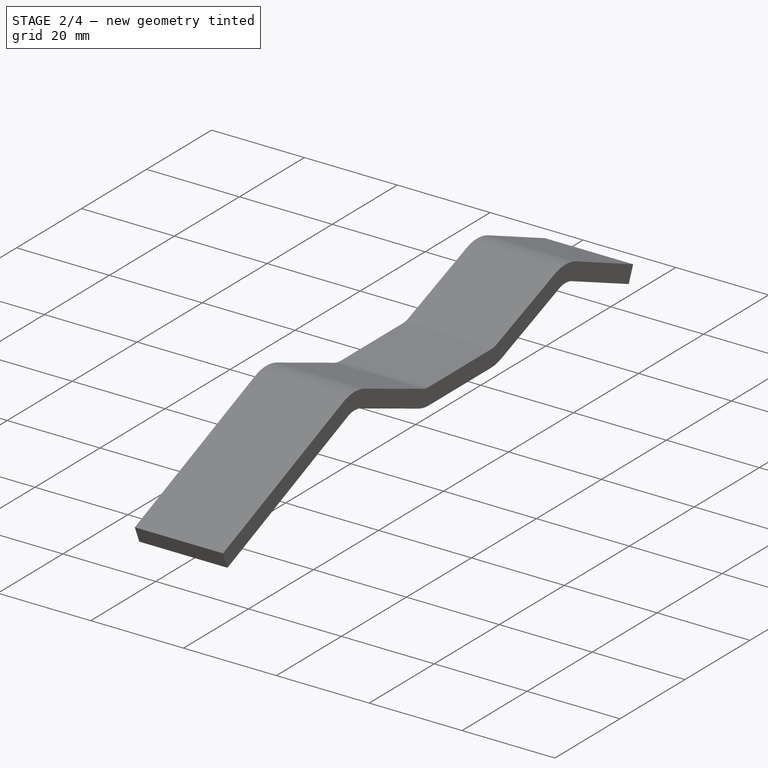
[diagram: stage 2 of 4 — iso view after this stage's code; geometry added in this stage tinted green]
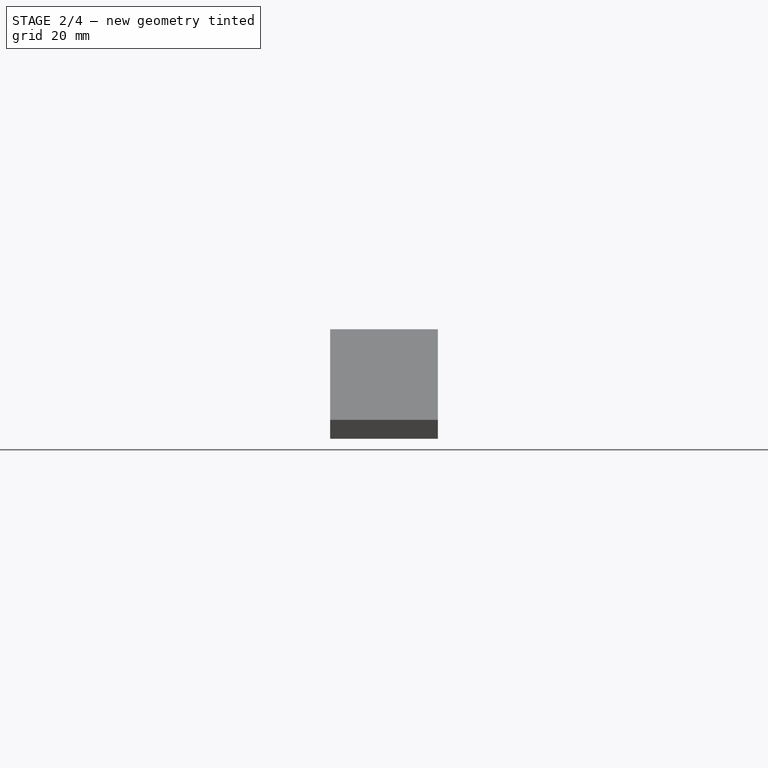
[diagram: stage 2 of 4 — front view after this stage's code; geometry added in this stage tinted green]
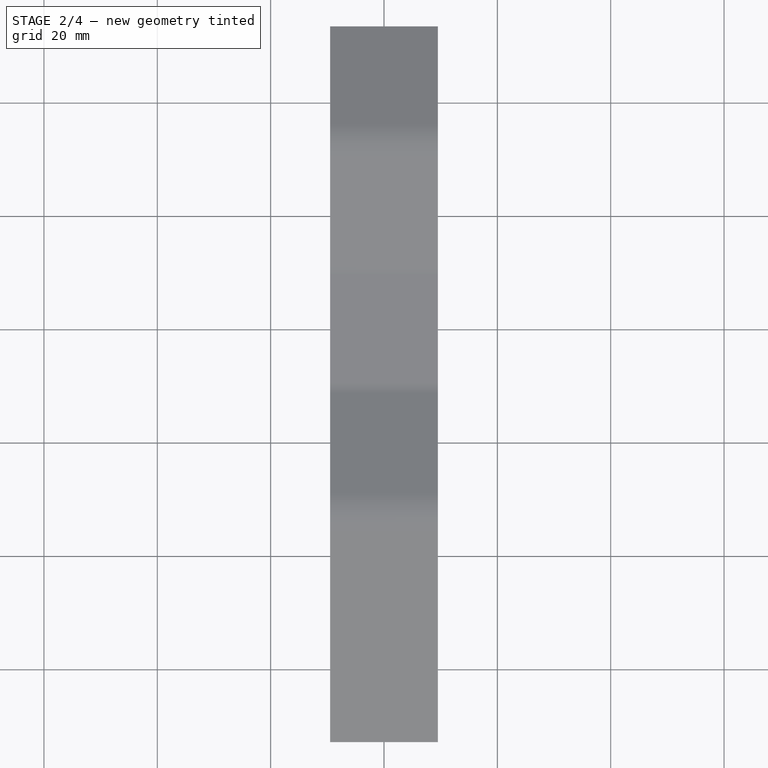
[diagram: stage 2 of 4 — top view after this stage's code; geometry added in this stage tinted green]
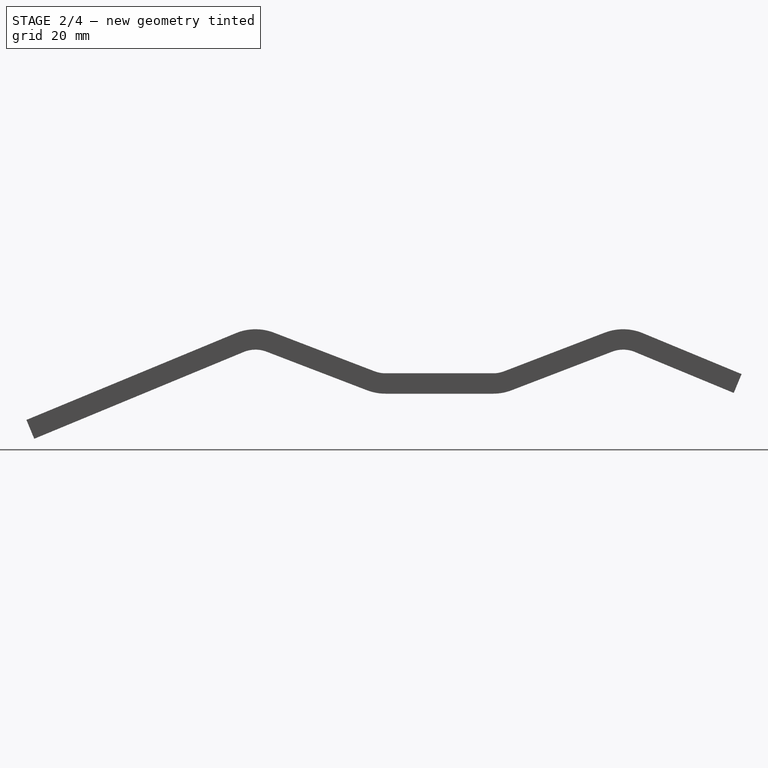
[diagram: stage 2 of 4 — right view after this stage's code; geometry added in this stage tinted green]
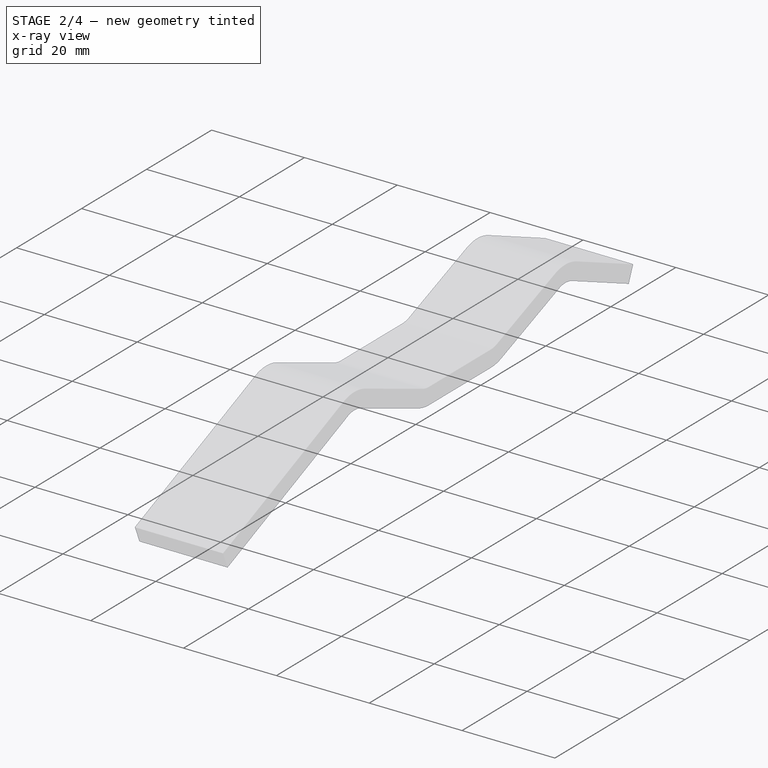
[diagram: stage 2 of 4 — x-ray composite at the iso view; earlier geometry ghosted, this stage's added geometry solid]
FEATURE [Part::Refine] Extrude003  label="KeyColumnBlankN"
  Source = -> Extrude
FEATURE [PartDesign::SubShapeBinder] Binder
  BindCopyOnChange = 0
  BindMode = 0
  ClaimChildren = false
  Context = -> Body003 [Binder.]
  Fuse = false
  MakeFace = true
  OffsetFill = false
  OffsetIntersection = false
  OffsetJoinType = 0
  OffsetOpenResult = false
  PartialLoad = false
  Relative = true
  Support = -> [Extrude001[Face21]]
  _Version = 2
FEATURE [Sketcher::SketchObject] Sketch002
  ExternalGeometry = -> [Binder]
  FullyConstrained = true
  MapMode = 5
  Placement = pos=(0,0,0) rot=(0.57735,0.57735,0.57735;2.0944rad)
  Support = -> [YZ_Plane003]
  sketch-geometry (4):
    g0: LineSegment StartX=53.3288 StartY=1.66298 StartZ=0 EndX=56.6547 EndY=0.285323 EndZ=0
    g1: LineSegment StartX=56.6547 StartY=0.285323 StartZ=0 EndX=55.2771 EndY=-3.04064 EndZ=0
    g2: LineSegment StartX=55.2771 StartY=-3.04064 StartZ=0 EndX=51.9511 EndY=-1.66298 EndZ=0
    g3: LineSegment StartX=51.9511 StartY=-1.66298 StartZ=0 EndX=53.3288 EndY=1.66298 EndZ=0
  constraints (10):
    c: Coincident(g0,g-3)
    c: Coincident(g0,g1)
    c: Coincident(g1,g2)
    c: Coincident(g2,g-4)
    c: Coincident(g2,g3)
    c: Coincident(g3,g0)
    c: Perpendicular(g0,g3)
    c: Perpendicular(g2,g3)
    c: Perpendicular(g1,g2)
    c: Equal(g3,g0)
FEATURE [PartDesign::Pad] Pad
  Direction = (1,-2e-16,3e-16)
  Length = 20
  Length2 = 10
  Midplane = true
  Placement = pos=(0,0,0) rot=(0.57735,0.57735,0.57735;2.0944rad)
  Profile = -> Sketch002
  ReferenceAxis = -> Sketch002 [N_Axis]
  Type = 0
FEATURE [PartDesign::Body] Body003  label="TrimA"
  Group = -> [Binder,Sketch002,Pad]
  Origin = -> Origin003
  Tip = -> Pad
FEATURE [PartDesign::SubShapeBinder] Binder001
  BindCopyOnChange = 0
  BindMode = 0
  ClaimChildren = false
  Context = -> Body004 [Binder001.]
  Fuse = false
  MakeFace = true
  OffsetFill = false
  OffsetIntersection = false
  OffsetJoinType = 0
  OffsetOpenResult = false
  PartialLoad = false
  Relative = true
  _Version = 2
FEATURE [Sketcher::SketchObject] Sketch003
  ExternalGeometry = -> [Binder001]
  FullyConstrained = true
  MapMode = 5
  Placement = pos=(0,0,0) rot=(0.57735,0.57735,0.57735;2.0944rad)
  Support = -> [YZ_Plane004]
  sketch-geometry (4):
    g0: LineSegment StartX=-72.8528 StartY=-6.42415 StartZ=0 EndX=-71.4752 EndY=-9.75012 EndZ=0
    g1: LineSegment StartX=-71.4752 StartY=-9.75012 StartZ=0 EndX=-74.8011 EndY=-11.1278 EndZ=0
    g2: LineSegment StartX=-74.8011 StartY=-11.1278 StartZ=0 EndX=-76.1788 EndY=-7.80181 EndZ=0
    g3: LineSegment StartX=-76.1788 StartY=-7.80181 StartZ=0 EndX=-72.8528 EndY=-6.42415 EndZ=0
  constraints (10):
    c: Coincident(g0,g-3)
    c: Coincident(g0,g-4)
    c: Coincident(g0,g1)
    c: Coincident(g1,g2)
    c: Coincident(g2,g3)
    c: Coincident(g3,g0)
    c: Perpendicular(g0,g3)
    c: Perpendicular(g0,g1)
    c: Perpendicular(g1,g2)
    c: Equal(g0,g1)
FEATURE [PartDesign::Pad] Pad001
  Direction = (1,-2e-16,3e-16)
  Length = 20
  Length2 = 10
  Midplane = true
  Placement = pos=(0,0,0) rot=(0.57735,0.57735,0.57735;2.0944rad)
  Profile = -> Sketch003
  ReferenceAxis = -> Sketch003 [N_Axis]
  Type = 0
FEATURE [PartDesign::SubShapeBinder] Binder002
  BindCopyOnChange = 0
  BindMode = 0
  ClaimChildren = false
  Context = -> Body004 [Binder002.]
  Fuse = false
  MakeFace = true
  OffsetFill = false
  OffsetIntersection = false
  OffsetJoinType = 0
  OffsetOpenResult = false
  PartialLoad = false
  Relative = true
  Support = -> [Extrude001[Face21]]
  _Version = 2
FEATURE [PartDesign::Body] Body004  label="TrimB"
  Group = -> [Binder001,Sketch003,Pad001,Binder002]
  Origin = -> Origin004
  Tip = -> Pad001
FEATURE [Part::Compound] Compound002  label="EndTrimmers"
  Links = -> [Body003,Body004]
FEATURE [Part::Cut] Cut002  label="KeyColumnTrim"
  Base = -> Extrude001
  Tool = -> Compound002
FEATURE [App::DocumentObjectGroup] Group001  label="Working"
  Group = -> [Cut004,Body,Compound,Body002,Extrude,Compound003]
FEATURE [Part::Refine] Compound004  label="KeyColumnCapsN"
  Source = -> Compound003
FEATURE [App::DocumentObjectGroup] Group  label="Refined Copies"
  Group = -> [Extrude003,Cut001,Compound004]

RESOLVED EXTERNAL PARTS (link-assembly join: the EXTERNAL_REF files above that resolve inside this repo's crawl, each included once):
---- part ../components/MX-Latch-Subtractor2.FCStd = doc fcstd_7b445c9ccc9a ----
FCSTD DOCUMENT  (FreeCAD 0.21R33668 +26 (Git))
Label: MX-Latch-Subtractor2
License: All rights reserved
LicenseURL: http://en.wikipedia.org/wiki/All_rights_reserved
objects: Sketcher::SketchObject×2, PartDesign::Pad×2, App::DocumentObjectGroup×2, PartDesign::Body×1, Part::Refine×1
note: 8 computed .brp shape members not serialized (recipe doc carries the construction recipe); baked Part::Feature solids carry a one-line shape summary decoded from their .brp

FEATURE [Sketcher::SketchObject] Sketch
  FullyConstrained = true
  MapMode = 5
  Support = -> [XY_Plane]
  sketch-geometry (4):
    g0: LineSegment StartX=-7 StartY=7 StartZ=0 EndX=7 EndY=7 EndZ=0
    g1: LineSegment StartX=7 StartY=7 StartZ=0 EndX=7 EndY=-7 EndZ=0
    g2: LineSegment StartX=7 StartY=-7 StartZ=0 EndX=-7 EndY=-7 EndZ=0
    g3: LineSegment StartX=-7 StartY=-7 StartZ=0 EndX=-7 EndY=7 EndZ=0
  constraints (11):
    c: Coincident(g0,g1)
    c: Coincident(g1,g2)
    c: Coincident(g2,g3)
    c: Coincident(g3,g0)
    c: Horizontal(g0)
    c: Horizontal(g2)
    c: Vertical(g1)
    c: Vertical(g3)
    c: Symmetric(g0,g1,g-1)
    c: Equal(g3,g0)
    c: DistanceX(g0,g0) = 14
FEATURE [PartDesign::Pad] Pad
  Direction = (0,0,1)
  Length = 10
  Length2 = 10
  Profile = -> Sketch
  ReferenceAxis = -> Sketch [N_Axis]
  Reversed = true
  Type = 0
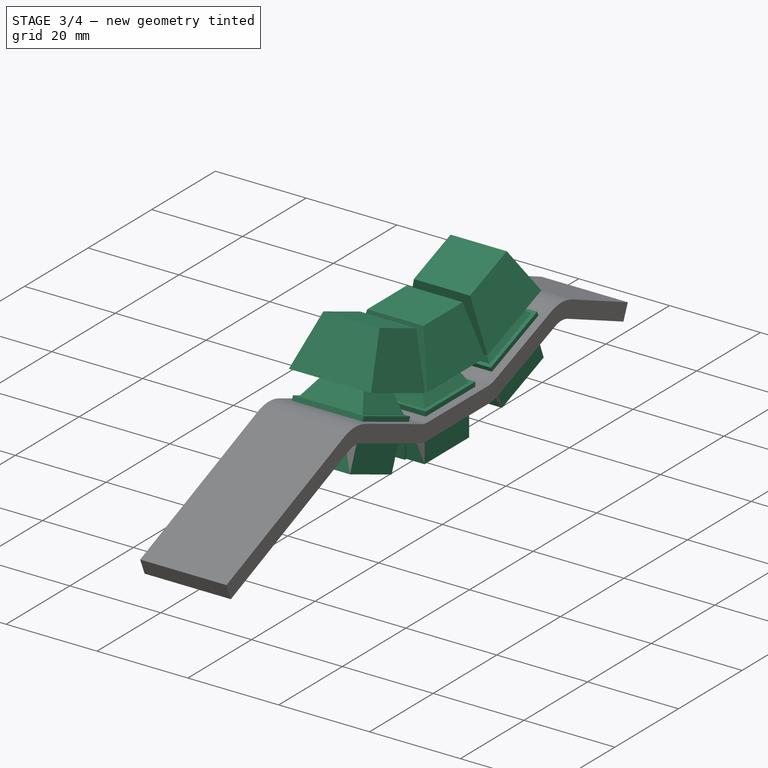
[diagram: stage 3 of 4 — iso view after this stage's code; geometry added in this stage tinted green]
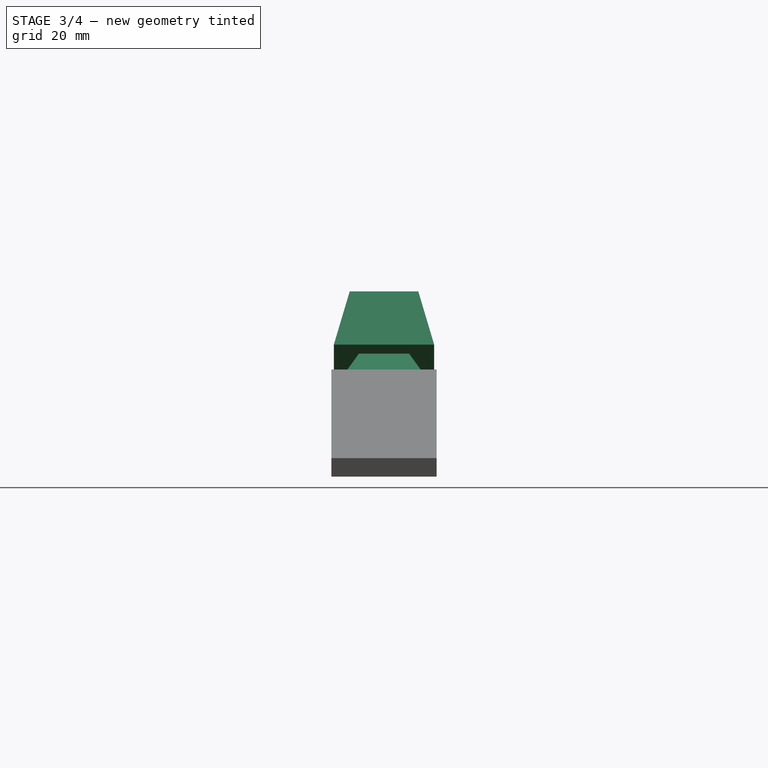
[diagram: stage 3 of 4 — front view after this stage's code; geometry added in this stage tinted green]
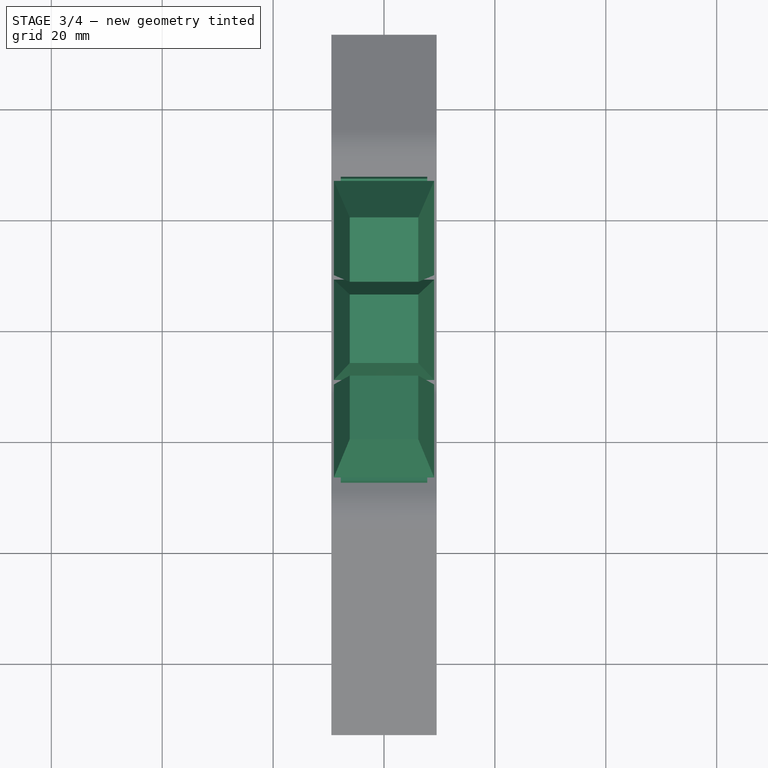
[diagram: stage 3 of 4 — top view after this stage's code; geometry added in this stage tinted green]
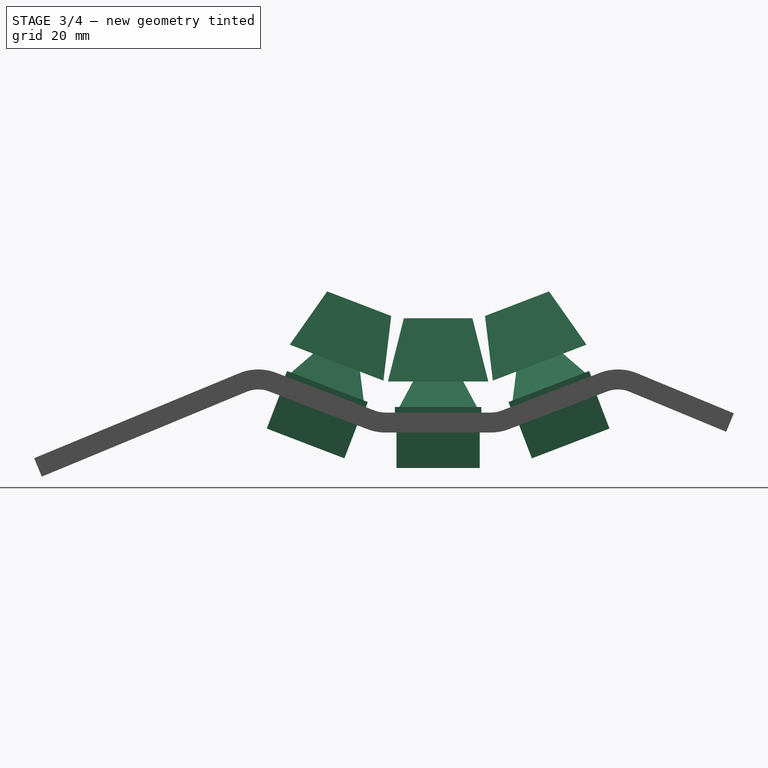
[diagram: stage 3 of 4 — right view after this stage's code; geometry added in this stage tinted green]
FEATURE [App::Link] Link  label="MXSwitch100Nice"
  AttacherType = Attacher::AttachEngine3D
  LinkPlacement = pos=(3.6e-15,20.3221,5.56648) rot=(1,0,0;0.366519rad)
  LinkedObject = -> <external ../components/MX_Switches.FCStd>#Body008
  MapMode = 2
  Placement = pos=(3.6e-15,20.3221,5.56648) rot=(1,0,0;0.366519rad)
FEATURE [App::Link] Link001  label="MXSwitch100Nice001"
  AttacherType = Attacher::AttachEngine3D
  LinkPlacement = pos=(0,-1.8e-15,1.8) rot=(0,0,1;0rad)
  LinkedObject = -> Link
  MapMode = 2
  Placement = pos=(0,-1.8e-15,1.8) rot=(0,0,1;0rad)
FEATURE [App::Link] Link002  label="MXSwitch100Nice002"
  AttacherType = Attacher::AttachEngine3D
  LinkPlacement = pos=(-8.9e-15,-20.3221,5.56648) rot=(-1,0,0;0.366519rad)
  LinkedObject = -> Link001
  MapMode = 2
  Placement = pos=(-8.9e-15,-20.3221,5.56648) rot=(-1,0,0;0.366519rad)
FEATURE [App::Link] Link003  label="MX-Latch-Subtractor2N"
  AttacherType = Attacher::AttachEngine3D
  LinkPlacement = pos=(3.6e-15,20.3221,5.56648) rot=(1,0,0;0.366519rad)
  LinkedObject = -> <external ../components/MX-Latch-Subtractor2.FCStd>#Body001
  MapMode = 2
  Placement = pos=(3.6e-15,20.3221,5.56648) rot=(1,0,0;0.366519rad)
FEATURE [App::Link] Link004  label="MX-Latch-Subtractor2N001"
  AttacherType = Attacher::AttachEngine3D
  LinkPlacement = pos=(0,-1.8e-15,1.8) rot=(0,0,1;0rad)
  LinkedObject = -> Link003
  MapMode = 2
  Placement = pos=(0,-1.8e-15,1.8) rot=(0,0,1;0rad)
FEATURE [App::Link] Link005  label="MX-Latch-Subtractor2N002"
  AttacherType = Attacher::AttachEngine3D
  LinkPlacement = pos=(-8.9e-15,-20.3221,5.56648) rot=(-1,0,0;0.366519rad)
  LinkedObject = -> Link004
  MapMode = 2
  Placement = pos=(-8.9e-15,-20.3221,5.56648) rot=(-1,0,0;0.366519rad)
FEATURE [Part::Compound] Compound  label="MXSwitchC"
  Links = -> [Link,Link001,Link002]
FEATURE [Part::Compound] Compound001  label="SubtractorC"
  Links = -> [Link005,Link003,Link004]
FEATURE [Part::Refine] Cut001  label="KeyColumnCutN"
  Source = -> Cut004
FEATURE [Part::Compound] Compound003  label="KeyColumnCaps"
  Links = -> [Cut002,Compound]
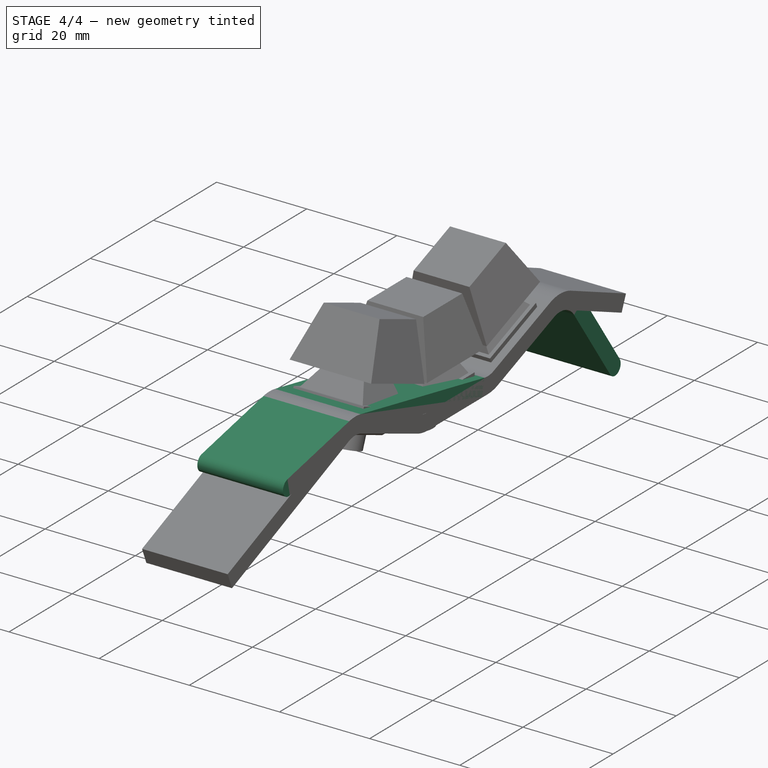
[diagram: stage 4 of 4 — iso view after this stage's code; geometry added in this stage tinted green]
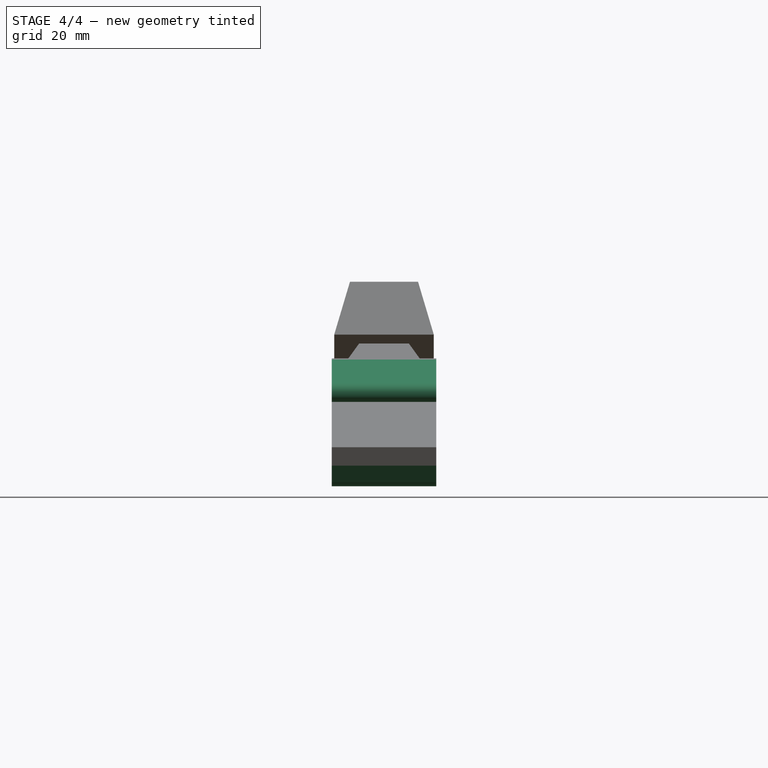
[diagram: stage 4 of 4 — front view after this stage's code; geometry added in this stage tinted green]
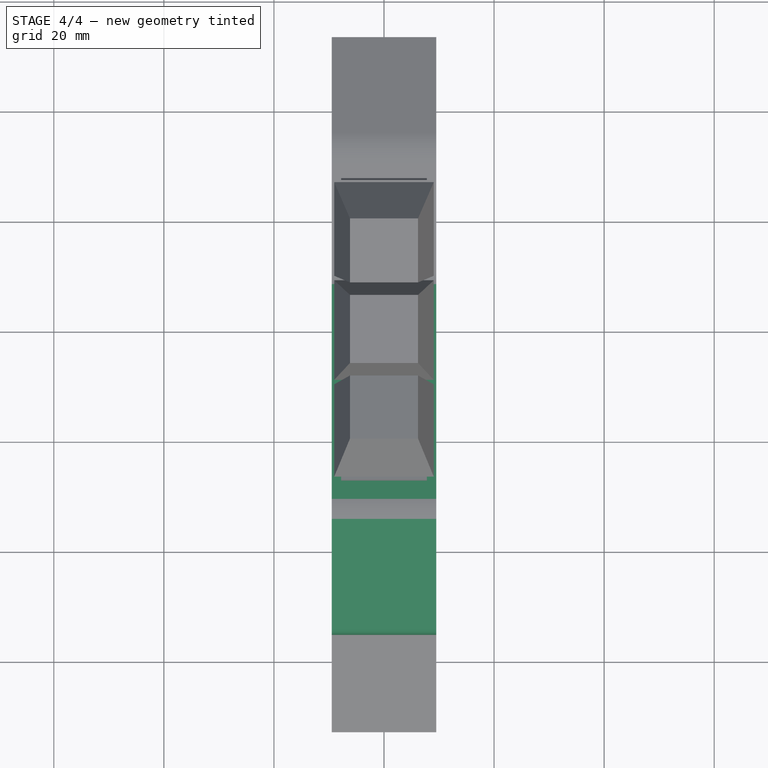
[diagram: stage 4 of 4 — top view after this stage's code; geometry added in this stage tinted green]
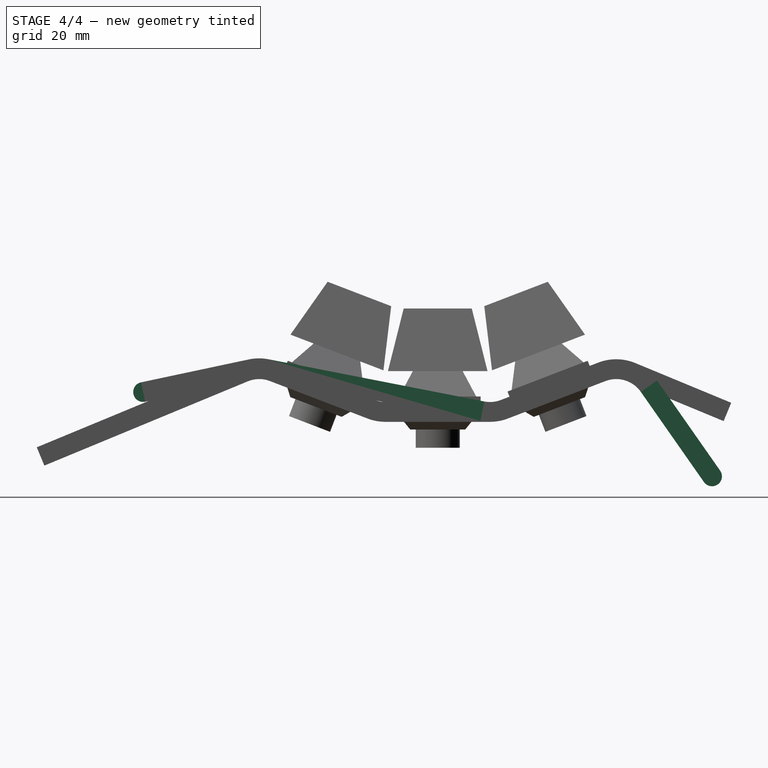
[diagram: stage 4 of 4 — right view after this stage's code; geometry added in this stage tinted green]
FEATURE [Sketcher::SketchObject] Sketch001
  FullyConstrained = false
  MapMode = 5
  Placement = pos=(0,0,0) rot=(0.57735,0.57735,0.57735;2.0944rad)
  Support = -> [YZ_Plane002]
  expr: Constraints[17] = <<S>>.KnuckleSpace
  expr: Constraints[5] = <<S>>.KnuckleSpace
  sketch-geometry (7):
    g0: LineSegment StartX=-31.0713 StartY=7.8 StartZ=0 EndX=8.10798 EndY=0.13489 EndZ=0
    g1: LineSegment StartX=12.0982 StartY=0.481542 StartZ=0 EndX=29.8362 EndY=7.29053 EndZ=0
    g2: ArcOfCircle CenterX=-32.4633 CenterY=0.68489 CenterZ=0 NormalX=0 NormalY=0 NormalZ=1 AngleXU=0 Radius=7.25 StartAngle=1.37759 EndAngle=1.78024
    g3: LineSegment StartX=-33.9706 StartY=7.77646 StartZ=0 EndX=-53.5336 EndY=3.61823 EndZ=0
    g4: ArcOfCircle CenterX=32.4344 CenterY=0.522075 CenterZ=0 NormalX=0 NormalY=0 NormalZ=1 AngleXU=0 Radius=7.25 StartAngle=0.610865 EndAngle=1.93732
    g5: LineSegment StartX=38.3732 StartY=4.6805 StartZ=0 EndX=49.8447 EndY=-11.7025 EndZ=0
    g6: ArcOfCircle CenterX=9.5 CenterY=7.25 CenterZ=0 NormalX=0 NormalY=0 NormalZ=1 AngleXU=0 Radius=7.25 StartAngle=4.51919 EndAngle=5.07891
  constraints (18):
    c: Tangent(g3,g2) = -1.5708
    c: Tangent(g5,g4) = 1.5708
    c: Tangent(g0,g2) = 1.5708
    c: Tangent(g4,g1) = 1.5708
    c: Tangent(g6,g1) = -1.5708
    c: Radius(g2) = 7.25
    c: Equal(g6,g4)
    c: Angle(g5,g-1) = 0.959931
    c: Angle(g-1,g3) = 0.20944
    c: Distance(g1) = 19
    c: DistanceX(g1) = 12.0982
    c: DistanceY(g1) = 0.481542
    c: DistanceX(g1) = 29.8362
    c: Tangent(g6,g0) = -1.5708
    c: DistanceY(g-1,g0) = 7.8
    c: Distance(g3) = 20
    c: Distance(g5) = 20
    c: Radius(g4) = 7.25
FEATURE [PartDesign::Body] Body002  label="SketchProfileAlt"
  Group = -> [Sketch001]
  Origin = -> Origin002
FEATURE [Part::Offset2D] Offset2D001
  Fill = false
  Intersection = false
  Join = 0
  Mode = 1
  SelfIntersection = false
  Source = -> Sketch001
  Value = 1.8
FEATURE [Part::Extrusion] Extrude  label="KeyColumnBlank"
  Base = -> Offset2D001
  Dir = (1,-2e-16,2e-16)
  DirMode = 2
  FaceMakerClass = Part::FaceMakerBullseye
  LengthFwd = 19
  LengthRev = 0
  Solid = true
  Symmetric = true
FEATURE [Part::Cut] Cut004  label="KeyColumnCut"
  Base = -> Cut002
  Tool = -> Compound001
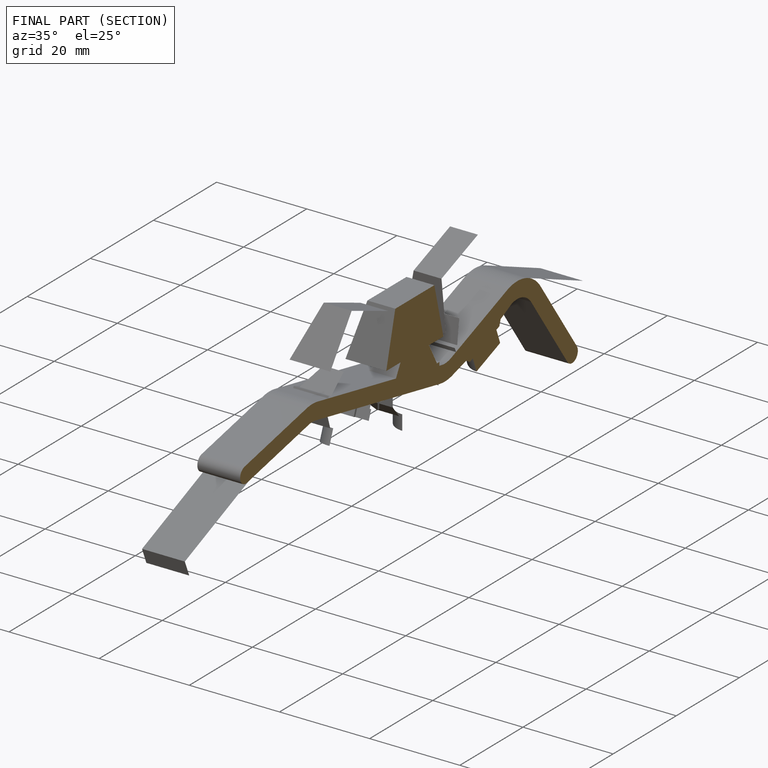
[diagram: finished part — half-section view (interior)]
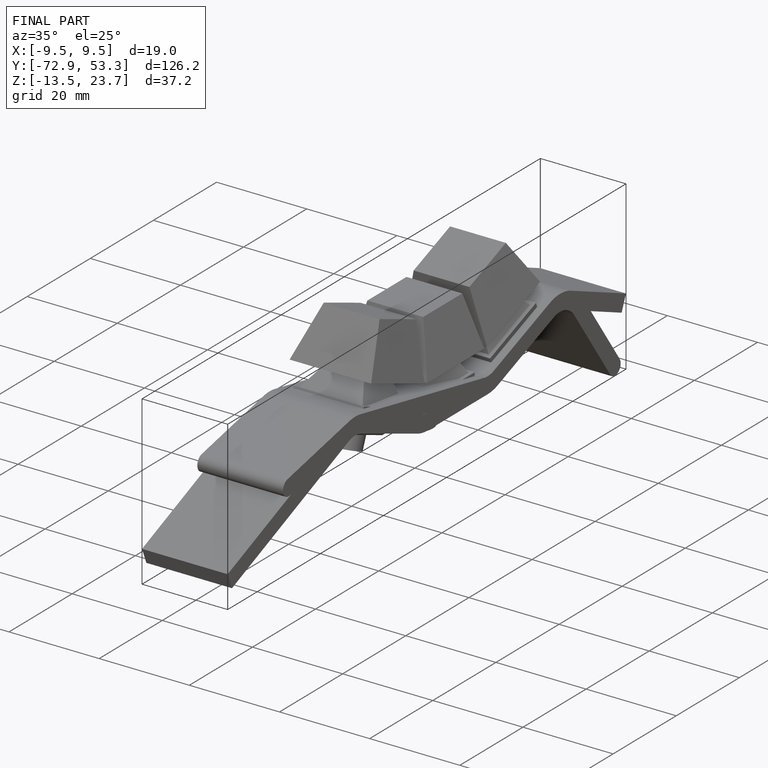
[diagram: finished part — iso view with bounding-box wireframe]
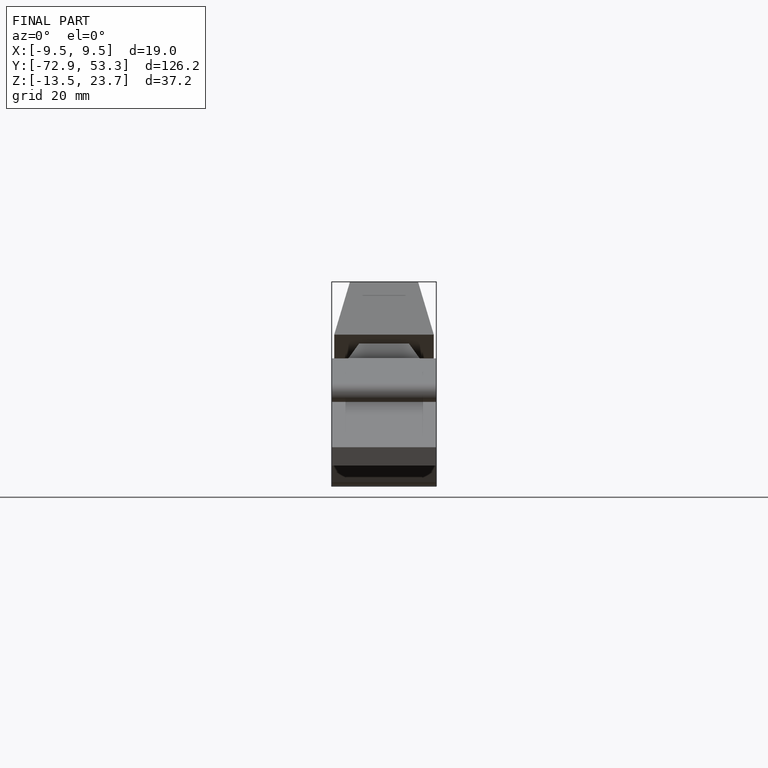
[diagram: finished part — front view with bounding-box wireframe]
